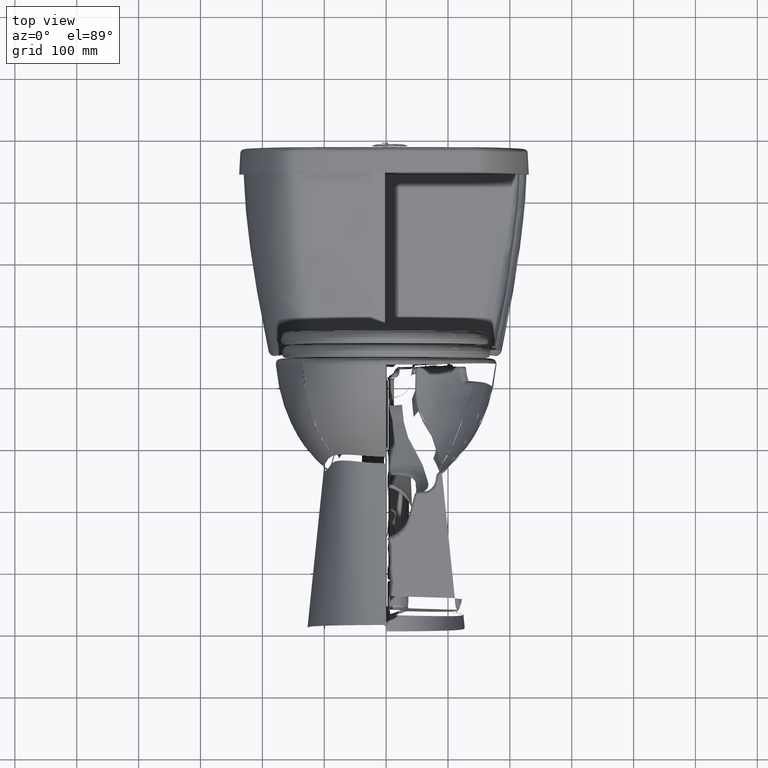
[diagram: clean part render]
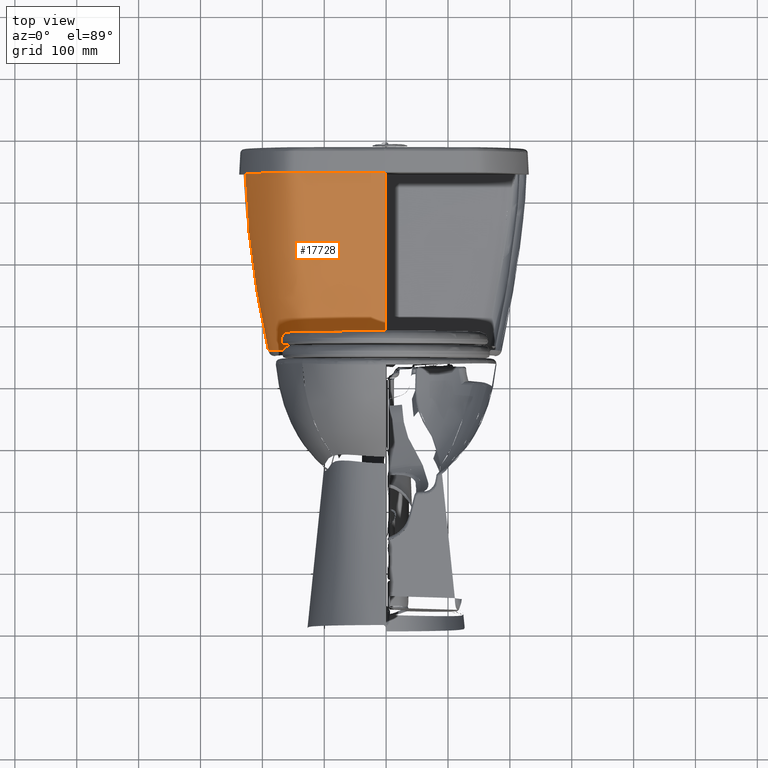
[diagram: same view with one face highlighted and labeled with its STEP entity id]
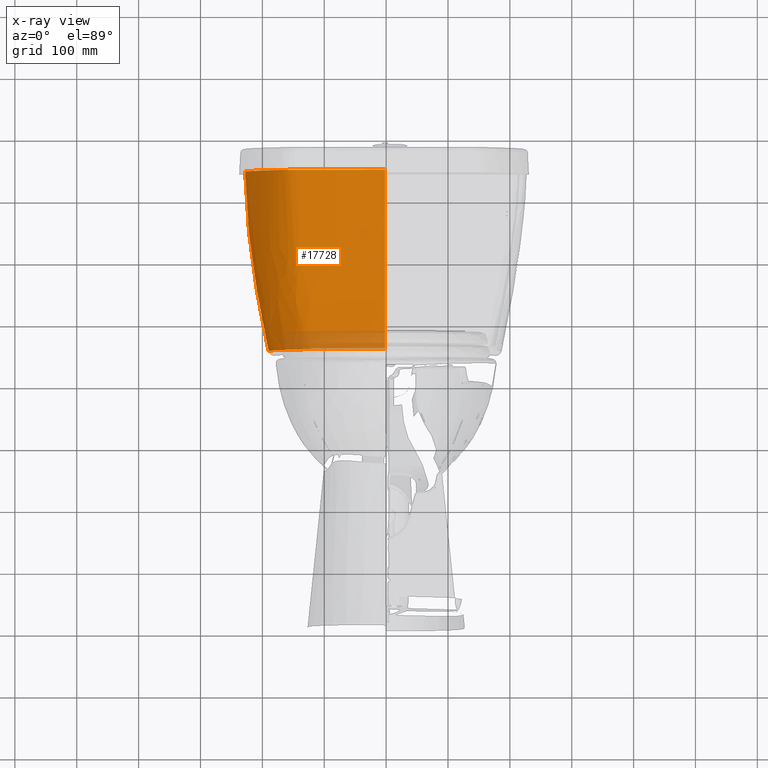
[diagram: x-ray of the same camera — body ghosted, the highlighted face saturated]
A machine part, top view. The second image highlights one B-rep face of the part: STEP entity #17728.
The next image is the same camera in x-ray: the body ghosted, the highlighted face saturated — about 8% of this face is hidden behind the body in this view.
In plain terms, the highlighted face is a freeform B-spline surface patch.
Its self-contained STEP definition (entity closure, byte-faithful):
#54 = CARTESIAN_POINT ( 'NONE',  ( -0.5759156156173215200, 8.645120971795753600, 18.14808200580433700 ) ) ;
#193 = ORIENTED_EDGE ( 'NONE', *, *, #99517, .T. ) ;
#425 = CARTESIAN_POINT ( 'NONE',  ( -4.843444304495649900, 9.036355176254870600, 18.12202411609814900 ) ) ;
#724 = CARTESIAN_POINT ( 'NONE',  ( -2.484427307581496000, 8.283950299369685400, 29.58607791455866100 ) ) ;
#875 = B_SPLINE_CURVE_WITH_KNOTS ( 'NONE', 3,
 ( #119340, #76656, #180079, #32629 ),
 .UNSPECIFIED., .F., .F.,
 ( 4, 4 ),
 ( 2.700093655429045700E-008, 1.000000000000000000 ),
 .UNSPECIFIED. ) ;
#978 = CARTESIAN_POINT ( 'NONE',  ( -0.06957529435913818700, 8.408995426294414000, 24.20142701333612600 ) ) ;
#1358 = CARTESIAN_POINT ( 'NONE',  ( -7.961040386578741100, 14.57544436936968600, 20.21667590555866300 ) ) ;
#1688 = EDGE_CURVE ( 'NONE', #75901, #140561, #108175, .T. ) ;
#1994 = CARTESIAN_POINT ( 'NONE',  ( -7.953771282578740600, 14.24922676836968600, 20.21746481355866000 ) ) ;
#2638 = CARTESIAN_POINT ( 'NONE',  ( -4.202420753578740800, 8.602909217369685300, 24.07287154855866600 ) ) ;
#2645 = EDGE_CURVE ( 'NONE', #91741, #110010, #82092, .T. ) ;
#2946 = CARTESIAN_POINT ( 'NONE',  ( -1.910012759629162300, 8.694009446846802500, 18.14820726276432700 ) ) ;
#3281 = CARTESIAN_POINT ( 'NONE',  ( -5.941964961578739800, 9.505108319369686100, 20.22394343755866300 ) ) ;
#3497 = ORIENTED_EDGE ( 'NONE', *, *, #138167, .T. ) ;
#3884 = CARTESIAN_POINT ( 'NONE',  ( -4.789893747882645800, 9.013719824153104900, 18.12511584792786600 ) ) ;
#3906 = CARTESIAN_POINT ( 'NONE',  ( -4.883689605578740400, 8.482439263369684600, 27.95242006855866300 ) ) ;
#4817 = B_SPLINE_CURVE_WITH_KNOTS ( 'NONE', 3,
 ( #60275, #148912, #31142, #104272 ),
 .UNSPECIFIED., .F., .F.,
 ( 4, 4 ),
 ( 0.0000000000000000000, 1.000000000000000000 ),
 .UNSPECIFIED. ) ;
#5168 = CARTESIAN_POINT ( 'NONE',  ( -4.398550120578741000, 8.919612159369684400, 18.01239655455866300 ) ) ;
#6168 = EDGE_CURVE ( 'NONE', #43469, #42097, #181508, .T. ) ;
#6179 = CARTESIAN_POINT ( 'NONE',  ( -7.482361455861553900, 14.53044846609858200, 18.07964991788846700 ) ) ;
#6355 = CARTESIAN_POINT ( 'NONE',  ( -5.274360142360504400, 9.353192366592084600, 18.10055319482524900 ) ) ;
#6710 = CARTESIAN_POINT ( 'NONE',  ( -6.767624438530874400, 9.354492718307378500, 29.51610994463990800 ) ) ;
#6722 = CARTESIAN_POINT ( 'NONE',  ( -4.279911011250380400, 8.374810559634978400, 29.50921690358447300 ) ) ;
#7443 = ORIENTED_EDGE ( 'NONE', *, *, #55020, .T. ) ;
#7987 = VERTEX_POINT ( 'NONE', #187131 ) ;
#8019 = B_SPLINE_CURVE_WITH_KNOTS ( 'NONE', 3,
 ( #121027, #31096, #32378, #135911 ),
 .UNSPECIFIED., .F., .F.,
 ( 4, 4 ),
 ( 0.0000000000000000000, 1.000000000000000000 ),
 .UNSPECIFIED. ) ;
#8160 = CARTESIAN_POINT ( 'NONE',  ( -3.075985671730977300, 8.767234846937196100, 18.14927285746048500 ) ) ;
#8534 = CARTESIAN_POINT ( 'NONE',  ( -0.06958910630861074600, 8.431692583550994200, 23.54027655544407700 ) ) ;
#8724 = CARTESIAN_POINT ( 'NONE',  ( -7.474128754038382300, 14.12249695793110500, 18.08161239953639000 ) ) ;
#9200 = CARTESIAN_POINT ( 'NONE',  ( -6.459285776620220100, 10.88132258206528000, 18.09260191678582800 ) ) ;
#9279 = ORIENTED_EDGE ( 'NONE', *, *, #156570, .T. ) ;
#9720 = EDGE_CURVE ( 'NONE', #140933, #69752, #118438, .T. ) ;
#10362 = VERTEX_POINT ( 'NONE', #110946 ) ;
#10743 = B_SPLINE_CURVE_WITH_KNOTS ( 'NONE', 3,
 ( #93323, #77810, #19521, #75899, #61004, #76535 ),
 .UNSPECIFIED., .F., .F.,
 ( 4, 2, 4 ),
 ( 0.0000000000000000000, 0.5000000000000000000, 1.000000000000000000 ),
 .UNSPECIFIED. ) ;
#10886 = B_SPLINE_CURVE_WITH_KNOTS ( 'NONE', 3,
 ( #185634, #127466, #143009, #143651, #187550, #186268 ),
 .UNSPECIFIED., .F., .F.,
 ( 4, 2, 4 ),
 ( 0.0000000000000000000, 0.5000000000000000000, 1.000000000000000000 ),
 .UNSPECIFIED. ) ;
#11003 = EDGE_CURVE ( 'NONE', #110010, #15673, #169446, .T. ) ;
#11337 = ORIENTED_EDGE ( 'NONE', *, *, #44198, .T. ) ;
#11759 = EDGE_CURVE ( 'NONE', #69752, #166173, #16447, .T. ) ;
#12516 = B_SPLINE_CURVE_WITH_KNOTS ( 'NONE', 3,
 ( #111550, #97340, #157465, #54603 ),
 .UNSPECIFIED., .F., .F.,
 ( 4, 4 ),
 ( 0.0000000000000000000, 1.000000000000000000 ),
 .UNSPECIFIED. ) ;
#13027 = ORIENTED_EDGE ( 'NONE', *, *, #161823, .T. ) ;
#13415 = CARTESIAN_POINT ( 'NONE',  ( -4.862374306323245900, 9.044828930298072200, 18.12088942272888300 ) ) ;
#13640 = CARTESIAN_POINT ( 'NONE',  ( -1.349757924535103000, 8.261261955880064200, 29.51170198151938700 ) ) ;
#13661 = CARTESIAN_POINT ( 'NONE',  ( -1.871979008769688800, 8.272324135655011900, 29.51135117646771300 ) ) ;
#13670 = CARTESIAN_POINT ( 'NONE',  ( -0.06687896272199492200, 8.639121858756297500, 18.14847525279141400 ) ) ;
#13696 = CARTESIAN_POINT ( 'NONE',  ( -4.185123306271648000, 8.881594745766204100, 18.14224217025906300 ) ) ;
#13697 = CARTESIAN_POINT ( 'NONE',  ( -7.354740879578740100, 10.19529421736968400, 29.58635484955866300 ) ) ;
#14003 = B_SPLINE_CURVE_WITH_KNOTS ( 'NONE', 3,
 ( #161384, #116127, #27491, #146537, #191714, #72782 ),
 .UNSPECIFIED., .F., .F.,
 ( 4, 2, 4 ),
 ( 0.0000000000000000000, 0.5000000000000000000, 1.000000000000000000 ),
 .UNSPECIFIED. ) ;
#14326 = CARTESIAN_POINT ( 'NONE',  ( -8.941374950578740800, 14.59875196836968500, 27.95269084155866000 ) ) ;
#14400 = CARTESIAN_POINT ( 'NONE',  ( -5.591708040825580800, 8.512835230966430800, 29.51016470317876300 ) ) ;
#14581 = ORIENTED_EDGE ( 'NONE', *, *, #137354, .T. ) ;
#14705 = CARTESIAN_POINT ( 'NONE',  ( -6.824759071996001400, 9.427432207082336600, 29.51639328671536300 ) ) ;
#14904 = CARTESIAN_POINT ( 'NONE',  ( -3.771526459276934000, 8.340502483219374600, 29.50896009080640800 ) ) ;
#15280 = CARTESIAN_POINT ( 'NONE',  ( -0.06687894166717083000, 8.248703220515347200, 29.51172890068780700 ) ) ;
#15286 = CARTESIAN_POINT ( 'NONE',  ( -4.899487010747526100, 9.063362250510440500, 18.11862005189147200 ) ) ;
#15293 = ORIENTED_EDGE ( 'NONE', *, *, #1688, .T. ) ;
#15516 = B_SPLINE_CURVE_WITH_KNOTS ( 'NONE', 3,
 ( #92133, #17704, #152280, #18344 ),
 .UNSPECIFIED., .F., .F.,
 ( 4, 4 ),
 ( 0.0000000000000000000, 1.000000000000000000 ),
 .UNSPECIFIED. ) ;
#15580 = CARTESIAN_POINT ( 'NONE',  ( -3.964515840578740800, 8.418418855369685300, 27.95178894755866800 ) ) ;
#15673 = VERTEX_POINT ( 'NONE', #14705 ) ;
#15791 = EDGE_CURVE ( 'NONE', #62003, #20037, #81539, .T. ) ;
#16227 = CARTESIAN_POINT ( 'NONE',  ( -5.508612629578740500, 9.113734766369686800, 20.22386222155866200 ) ) ;
#16447 = B_SPLINE_CURVE_WITH_KNOTS ( 'NONE', 3,
 ( #133940, #104169, #164926, #44624 ),
 .UNSPECIFIED., .F., .F.,
 ( 4, 4 ),
 ( 0.0000000000000000000, 1.000000000000000000 ),
 .UNSPECIFIED. ) ;
#16694 = CARTESIAN_POINT ( 'NONE',  ( -8.801917074316662600, 13.74801494391548600, 29.51307629096830400 ) ) ;
#16808 = ORIENTED_EDGE ( 'NONE', *, *, #109498, .T. ) ;
#16830 = EDGE_CURVE ( 'NONE', #60939, #64682, #180088, .T. ) ;
#16855 = CARTESIAN_POINT ( 'NONE',  ( -6.686868325484461200, 11.28157692393729600, 18.09345689286453400 ) ) ;
#16879 = CARTESIAN_POINT ( 'NONE',  ( -7.801106546578740400, 13.11978779536968700, 20.22047666255866400 ) ) ;
#16963 = CARTESIAN_POINT ( 'NONE',  ( -7.245524525503682000, 12.68298502122329900, 18.08886855818509800 ) ) ;
#17029 = ORIENTED_EDGE ( 'NONE', *, *, #19965, .T. ) ;
#17517 = CARTESIAN_POINT ( 'NONE',  ( -8.562769841578740300, 13.75393798136968800, 24.07330331055866400 ) ) ;
#17704 = CARTESIAN_POINT ( 'NONE',  ( -6.864002244024221400, 11.63290864703759600, 18.09356891522969900 ) ) ;
#17728 = ADVANCED_FACE ( 'NONE', ( #25951 ), #61690, .T. ) ;
#17977 = CARTESIAN_POINT ( 'NONE',  ( -8.835040380388999600, 13.89614937728836400, 29.51305981173584700 ) ) ;
#18154 = CARTESIAN_POINT ( 'NONE',  ( -7.631982921578740300, 12.46602721936968400, 20.22200228255866300 ) ) ;
#18344 = CARTESIAN_POINT ( 'NONE',  ( -6.686868325484461200, 11.28157692393729600, 18.09345689286453400 ) ) ;
#18834 = B_SPLINE_CURVE_WITH_KNOTS ( 'NONE', 3,
 ( #48391, #139586, #8160, #81329 ),
 .UNSPECIFIED., .F., .F.,
 ( 4, 4 ),
 ( 0.0000000000000000000, 1.000000000000000000 ),
 .UNSPECIFIED. ) ;
#19471 = ORIENTED_EDGE ( 'NONE', *, *, #130384, .T. ) ;
#19521 = CARTESIAN_POINT ( 'NONE',  ( -5.296188670955568300, 8.467987950217738200, 29.50991574958976900 ) ) ;
#19871 = EDGE_CURVE ( 'NONE', #52900, #63493, #19951, .T. ) ;
#19951 = B_SPLINE_CURVE_WITH_KNOTS ( 'NONE', 3,
 ( #24713, #187704, #159916, #113993 ),
 .UNSPECIFIED., .F., .F.,
 ( 4, 4 ),
 ( 0.0000000000000000000, 1.000000000000000000 ),
 .UNSPECIFIED. ) ;
#19965 = EDGE_CURVE ( 'NONE', #32003, #10362, #63793, .T. ) ;
#20037 = VERTEX_POINT ( 'NONE', #160557 ) ;
#20060 = CARTESIAN_POINT ( 'NONE',  ( -1.088936888581496100, 8.663872220369686500, 18.01236580555866200 ) ) ;
#20837 = B_SPLINE_CURVE_WITH_KNOTS ( 'NONE', 3,
 ( #33998, #92901, #2946, #78653 ),
 .UNSPECIFIED., .F., .F.,
 ( 4, 4 ),
 ( 0.0000000000000000000, 1.000000000000000000 ),
 .UNSPECIFIED. ) ;
#21195 = EDGE_CURVE ( 'NONE', #10362, #46829, #875, .T. ) ;
#21599 = CARTESIAN_POINT ( 'NONE',  ( -6.703992617314807700, 9.275782709386229300, 29.51573660899459400 ) ) ;
#21965 = B_SPLINE_CURVE_WITH_KNOTS ( 'NONE', 3,
 ( #98956, #158435, #40701, #70490, #173291, #87281 ),
 .UNSPECIFIED., .F., .F.,
 ( 4, 2, 4 ),
 ( 0.0000000000000000000, 0.5000000000000000000, 1.000000000000000000 ),
 .UNSPECIFIED. ) ;
#22290 = CARTESIAN_POINT ( 'NONE',  ( -8.299225146130329000, 12.17532386870163200, 29.51338897246973000 ) ) ;
#23167 = B_SPLINE_CURVE_WITH_KNOTS ( 'NONE', 3,
 ( #36161, #168764, #6355, #124813 ),
 .UNSPECIFIED., .F., .F.,
 ( 4, 4 ),
 ( 0.0000000000000000000, 1.000000000000000000 ),
 .UNSPECIFIED. ) ;
#23372 = B_SPLINE_CURVE_WITH_KNOTS ( 'NONE', 3,
 ( #136142, #61746, #120612, #31974 ),
 .UNSPECIFIED., .F., .F.,
 ( 4, 4 ),
 ( 0.0000000000000000000, 1.000000000000000000 ),
 .UNSPECIFIED. ) ;
#23425 = VERTEX_POINT ( 'NONE', #98629 ) ;
#23628 = CARTESIAN_POINT ( 'NONE',  ( -7.464801493988217900, 13.98897612093228700, 18.08220826202361700 ) ) ;
#24292 = CARTESIAN_POINT ( 'NONE',  ( -5.055733736940016600, 9.162039709685123200, 18.10954401536872300 ) ) ;
#24713 = CARTESIAN_POINT ( 'NONE',  ( -5.223544044011286600, 9.304916576859614700, 18.10239243819775700 ) ) ;
#24889 = B_SPLINE_CURVE_WITH_KNOTS ( 'NONE', 3,
 ( #116280, #39943, #144135, #102051, #27640, #158947 ),
 .UNSPECIFIED., .F., .F.,
 ( 4, 2, 4 ),
 ( 0.0000000000000000000, 0.5000000000000000000, 1.000000000000000000 ),
 .UNSPECIFIED. ) ;
#25484 = B_SPLINE_CURVE_WITH_KNOTS ( 'NONE', 3,
 ( #134512, #45824, #16694, #17977 ),
 .UNSPECIFIED., .F., .F.,
 ( 4, 4 ),
 ( 0.0000000000000000000, 1.000000000000000000 ),
 .UNSPECIFIED. ) ;
#25610 = CARTESIAN_POINT ( 'NONE',  ( -0.06713577941557386000, 8.266831558500092200, 28.82473935726169900 ) ) ;
#25951 = FACE_OUTER_BOUND ( 'NONE', #112239, .T. ) ;
#26604 = VERTEX_POINT ( 'NONE', #122401 ) ;
#27327 = CARTESIAN_POINT ( 'NONE',  ( -6.026635929333781200, 8.664478427133619900, 29.51229056747580500 ) ) ;
#27329 = CARTESIAN_POINT ( 'NONE',  ( -6.791469629578741300, 9.372721199369685500, 27.95449382355866400 ) ) ;
#27412 = CARTESIAN_POINT ( 'NONE',  ( -5.737494443881623800, 8.548739771452485300, 29.51063363665632300 ) ) ;
#27423 = CARTESIAN_POINT ( 'NONE',  ( -6.171045592999393900, 8.756071661935138200, 29.51295800513034400 ) ) ;
#27429 = B_SPLINE_CURVE_WITH_KNOTS ( 'NONE', 3,
 ( #187151, #53953, #6722, #110257, #140693, #112175 ),
 .UNSPECIFIED., .F., .F.,
 ( 4, 2, 4 ),
 ( 0.0000000000000000000, 0.5000000000000000000, 1.000000000000000000 ),
 .UNSPECIFIED. ) ;
#27491 = CARTESIAN_POINT ( 'NONE',  ( -1.529798068705945600, 8.676718773866010500, 18.14764415410098800 ) ) ;
#27540 = CARTESIAN_POINT ( 'NONE',  ( -2.928591381195276600, 8.756489519258273900, 18.14943787137755700 ) ) ;
#27640 = CARTESIAN_POINT ( 'NONE',  ( -5.987525958743279200, 10.18618100188932400, 18.09161236388856500 ) ) ;
#27946 = CARTESIAN_POINT ( 'NONE',  ( -7.392017609571041700, 13.36029025162438100, 18.08506216090036000 ) ) ;
#27975 = CARTESIAN_POINT ( 'NONE',  ( -8.606683746578740500, 13.12625184736968400, 27.95551233855865900 ) ) ;
#27985 = CARTESIAN_POINT ( 'NONE',  ( -7.189371098487355600, 9.940537230721801600, 29.51720479134369800 ) ) ;
#28113 = CARTESIAN_POINT ( 'NONE',  ( -7.429890904259779400, 13.62573319653740700, 18.08382414770434100 ) ) ;
#28568 = CARTESIAN_POINT ( 'NONE',  ( -3.148811801155903200, 8.311085266289771000, 29.50963670896103300 ) ) ;
#29014 = ORIENTED_EDGE ( 'NONE', *, *, #103184, .T. ) ;
#29152 = B_SPLINE_CURVE_WITH_KNOTS ( 'NONE', 3,
 ( #28113, #102508, #131626, #85070 ),
 .UNSPECIFIED., .F., .F.,
 ( 4, 4 ),
 ( 0.0000000000000000000, 1.000000000000000000 ),
 .UNSPECIFIED. ) ;
#29231 = CARTESIAN_POINT ( 'NONE',  ( -5.851533434578740000, 8.579414152369684700, 29.58621149255866500 ) ) ;
#29581 = B_SPLINE_CURVE_WITH_KNOTS ( 'NONE', 3,
 ( #177451, #88877, #60382, #32542 ),
 .UNSPECIFIED., .F., .F.,
 ( 4, 4 ),
 ( 0.0000000000000000000, 1.000000000000000000 ),
 .UNSPECIFIED. ) ;
#29710 = CARTESIAN_POINT ( 'NONE',  ( -7.392017609571041700, 13.36029025162438100, 18.08506216090036000 ) ) ;
#29870 = CARTESIAN_POINT ( 'NONE',  ( -3.960117287578740300, 8.347894363369686500, 29.58612242355866300 ) ) ;
#30058 = CARTESIAN_POINT ( 'NONE',  ( -6.943855121904792100, 9.580882543105628800, 29.51694103702190100 ) ) ;
#30300 = VERTEX_POINT ( 'NONE', #81128 ) ;
#30346 = CARTESIAN_POINT ( 'NONE',  ( -7.314196375219895100, 12.95899655256626900, 18.08722802056546900 ) ) ;
#30502 = CARTESIAN_POINT ( 'NONE',  ( -6.234930196578740300, 9.830835492369685000, 20.22398390055866500 ) ) ;
#30561 = CARTESIAN_POINT ( 'NONE',  ( -6.633352075267104900, 9.191638061342262100, 29.51527329305868000 ) ) ;
#30981 = CARTESIAN_POINT ( 'NONE',  ( -2.424136804976375200, 8.722706227852031100, 18.14918593247441700 ) ) ;
#31096 = CARTESIAN_POINT ( 'NONE',  ( -0.06762824288161370400, 8.591683194408361100, 19.28482992333070800 ) ) ;
#31136 = CARTESIAN_POINT ( 'NONE',  ( -3.298767321581496300, 8.377809035369685000, 27.95141532055866300 ) ) ;
#31142 = CARTESIAN_POINT ( 'NONE',  ( -3.442174450363798800, 8.797485151389038200, 18.14767942714117800 ) ) ;
#31707 = EDGE_CURVE ( 'NONE', #67588, #110510, #63651, .T. ) ;
#31783 = CARTESIAN_POINT ( 'NONE',  ( -4.491424963578740700, 8.452852124369684400, 27.95213591055866000 ) ) ;
#31974 = CARTESIAN_POINT ( 'NONE',  ( -4.532316520570808500, 8.939644056616785400, 18.13652129419253400 ) ) ;
#31987 = ORIENTED_EDGE ( 'NONE', *, *, #96120, .T. ) ;
#32003 = VERTEX_POINT ( 'NONE', #77948 ) ;
#32378 = CARTESIAN_POINT ( 'NONE',  ( -0.06825702994223109600, 8.554863248165649000, 20.20672180327644800 ) ) ;
#32420 = CARTESIAN_POINT ( 'NONE',  ( 0.01283515141818897600, 8.289782503369686100, 27.95061515355866500 ) ) ;
#32470 = CARTESIAN_POINT ( 'NONE',  ( -4.918156015806580700, 9.073035024279066700, 18.11746005950843500 ) ) ;
#32542 = CARTESIAN_POINT ( 'NONE',  ( -7.736700474053893800, 10.90412051503249900, 29.51558084639765800 ) ) ;
#32629 = CARTESIAN_POINT ( 'NONE',  ( -0.06687896537549675700, 8.629987242170070500, 18.36668607419317900 ) ) ;
#32707 = B_SPLINE_CURVE_WITH_KNOTS ( 'NONE', 3,
 ( #97985, #69506, #14400, #57165, #146457, #27412 ),
 .UNSPECIFIED., .F., .F.,
 ( 4, 2, 4 ),
 ( 0.0000000000000000000, 0.5000000000000000000, 1.000000000000000000 ),
 .UNSPECIFIED. ) ;
#32802 = CARTESIAN_POINT ( 'NONE',  ( -2.564162982359838400, 8.290293666661485300, 29.51051158176378300 ) ) ;
#33062 = CARTESIAN_POINT ( 'NONE',  ( 0.006455968418188975900, 8.405620319369685200, 24.07314927655866300 ) ) ;
#33658 = CARTESIAN_POINT ( 'NONE',  ( -4.716700813625972300, 8.409601510999728200, 29.50955778339880800 ) ) ;
#33785 = ORIENTED_EDGE ( 'NONE', *, *, #90742, .T. ) ;
#33998 = CARTESIAN_POINT ( 'NONE',  ( -2.128973087010628300, 8.705559562459066900, 18.14861234814961200 ) ) ;
#34978 = EDGE_CURVE ( 'NONE', #80819, #117129, #65840, .T. ) ;
#35245 = EDGE_CURVE ( 'NONE', #83023, #108493, #21965, .T. ) ;
#35307 = CARTESIAN_POINT ( 'NONE',  ( -8.128016930795951100, 11.75922257144777400, 29.51383433778567400 ) ) ;
#35464 = B_SPLINE_CURVE_WITH_KNOTS ( 'NONE', 3,
 ( #29710, #133240, #161706, #30346 ),
 .UNSPECIFIED., .F., .F.,
 ( 4, 4 ),
 ( 0.0000000000000000000, 1.000000000000000000 ),
 .UNSPECIFIED. ) ;
#35603 = CARTESIAN_POINT ( 'NONE',  ( -3.807926719581495900, 8.839728232369685300, 18.01238822655866300 ) ) ;
#35781 = CARTESIAN_POINT ( 'NONE',  ( -7.887204188091015300, 11.21421315749575400, 29.51485813735561000 ) ) ;
#35793 = CARTESIAN_POINT ( 'NONE',  ( -8.969553550552150900, 14.62322869866720700, 29.51326678165068200 ) ) ;
#36161 = CARTESIAN_POINT ( 'NONE',  ( -5.368479778144433100, 9.451906497066128000, 18.09794574598928200 ) ) ;
#36703 = CARTESIAN_POINT ( 'NONE',  ( -5.785698296115279000, 8.563030956695918400, 29.51086110109954000 ) ) ;
#36839 = EDGE_CURVE ( 'NONE', #49084, #140377, #43250, .T. ) ;
#37109 = CARTESIAN_POINT ( 'NONE',  ( -5.368479778144433100, 9.451906497066128000, 18.09794574598928200 ) ) ;
#37509 = B_SPLINE_CURVE_WITH_KNOTS ( 'NONE', 3,
 ( #177917, #13640, #117168, #57669 ),
 .UNSPECIFIED., .F., .F.,
 ( 4, 4 ),
 ( 0.0000000000000000000, 1.000000000000000000 ),
 .UNSPECIFIED. ) ;
#38485 = CARTESIAN_POINT ( 'NONE',  ( -7.464801493988217900, 13.98897612093228700, 18.08220826202361700 ) ) ;
#38872 = CARTESIAN_POINT ( 'NONE',  ( -4.369787881161405700, 8.909276420144541600, 18.14007221432677100 ) ) ;
#39099 = CARTESIAN_POINT ( 'NONE',  ( -5.188325168570812300, 8.455712613476452000, 29.50985505875514600 ) ) ;
#39183 = CARTESIAN_POINT ( 'NONE',  ( -5.020697945948756800, 9.135990605698285800, 18.11127372198136600 ) ) ;
#39446 = CARTESIAN_POINT ( 'NONE',  ( -7.245524525503682000, 12.68298502122329900, 18.08886855818509800 ) ) ;
#39884 = B_SPLINE_CURVE_WITH_KNOTS ( 'NONE', 3,
 ( #28568, #59572, #14904, #176022 ),
 .UNSPECIFIED., .F., .F.,
 ( 4, 4 ),
 ( 0.0000000000000000000, 1.000000000000000000 ),
 .UNSPECIFIED. ) ;
#39943 = CARTESIAN_POINT ( 'NONE',  ( -6.200799387758009700, 10.48129334941366900, 18.09167612362760400 ) ) ;
#40031 = CARTESIAN_POINT ( 'NONE',  ( -7.270418464351959800, 12.77443966538951200, 18.08832330394271500 ) ) ;
#40267 = ORIENTED_EDGE ( 'NONE', *, *, #66931, .T. ) ;
#40406 = EDGE_CURVE ( 'NONE', #136599, #83023, #25484, .T. ) ;
#40584 = VERTEX_POINT ( 'NONE', #86887 ) ;
#40701 = CARTESIAN_POINT ( 'NONE',  ( -8.892585324073270000, 14.16767844037057100, 29.51307450644430100 ) ) ;
#41179 = B_SPLINE_CURVE_WITH_KNOTS ( 'NONE', 3,
 ( #30981, #80716, #64583, #80089 ),
 .UNSPECIFIED., .F., .F.,
 ( 4, 4 ),
 ( 0.0000000000000000000, 1.000000000000000000 ),
 .UNSPECIFIED. ) ;
#41225 = CARTESIAN_POINT ( 'NONE',  ( -7.189371098487355600, 9.940537230721801600, 29.51720479134369800 ) ) ;
#41411 = B_SPLINE_CURVE_WITH_KNOTS ( 'NONE', 3,
 ( #73520, #47625, #184649, #35307, #110950, #22290, #155604, #138208 ),
 .UNSPECIFIED., .F., .F.,
 ( 4, 2, 2, 4 ),
 ( 0.0000000000000000000, 0.2500000000000011700, 0.5000000000000023300, 1.000000000000000000 ),
 .UNSPECIFIED. ) ;
#41791 = CARTESIAN_POINT ( 'NONE',  ( -8.515160149212450200, 12.76591479566890500, 29.51320015962904400 ) ) ;
#42097 = VERTEX_POINT ( 'NONE', #191409 ) ;
#42202 = CARTESIAN_POINT ( 'NONE',  ( -6.542053059578740300, 9.101372878369685900, 27.95409101255866300 ) ) ;
#42291 = CARTESIAN_POINT ( 'NONE',  ( -5.940308389912977400, 10.12471942446330400, 18.09175157450324900 ) ) ;
#42842 = CARTESIAN_POINT ( 'NONE',  ( -7.859936943578740700, 11.14871608536968500, 29.58640521855866400 ) ) ;
#43250 = B_SPLINE_CURVE_WITH_KNOTS ( 'NONE', 3,
 ( #170068, #126133, #81472, #96367 ),
 .UNSPECIFIED., .F., .F.,
 ( 4, 4 ),
 ( 0.0000000000000000000, 1.000000000000000000 ),
 .UNSPECIFIED. ) ;
#43437 = EDGE_CURVE ( 'NONE', #54144, #60939, #95391, .T. ) ;
#43469 = VERTEX_POINT ( 'NONE', #16963 ) ;
#43899 = ORIENTED_EDGE ( 'NONE', *, *, #106562, .T. ) ;
#44098 = CARTESIAN_POINT ( 'NONE',  ( -8.788643253578740700, 13.77357758536968600, 27.95441291755866300 ) ) ;
#44198 = EDGE_CURVE ( 'NONE', #161383, #57173, #53752, .T. ) ;
#44624 = CARTESIAN_POINT ( 'NONE',  ( -4.185123306271648000, 8.881594745766204100, 18.14224217025906300 ) ) ;
#44717 = CARTESIAN_POINT ( 'NONE',  ( -7.071035238578741800, 9.732002577369685900, 27.95500022555866300 ) ) ;
#44769 = ORIENTED_EDGE ( 'NONE', *, *, #156507, .T. ) ;
#45334 = CARTESIAN_POINT ( 'NONE',  ( -4.815590292692595800, 9.023890339128692900, 18.12366350769669400 ) ) ;
#45349 = B_SPLINE_CURVE_WITH_KNOTS ( 'NONE', 3,
 ( #147740, #89497, #134145, #161331, #177438 ),
 .UNSPECIFIED., .F., .F.,
 ( 4, 1, 4 ),
 ( 0.01466018292442166000, 0.4161931364479999900, 0.9737732050194725100 ),
 .UNSPECIFIED. ) ;
#45357 = CARTESIAN_POINT ( 'NONE',  ( -4.788053805578740300, 8.840615396369685200, 20.22375666955866100 ) ) ;
#45824 = CARTESIAN_POINT ( 'NONE',  ( -8.765376053953254100, 13.60060002251360500, 29.51309140609866700 ) ) ;
#46000 = CARTESIAN_POINT ( 'NONE',  ( -7.445252388578740700, 13.77450303536968700, 18.01188086055866200 ) ) ;
#46054 = VERTEX_POINT ( 'NONE', #155974 ) ;
#46610 = CARTESIAN_POINT ( 'NONE',  ( -4.722689823425084500, 8.989792104887078100, 18.12872463759050500 ) ) ;
#46639 = CARTESIAN_POINT ( 'NONE',  ( -3.702510023581496500, 8.575823991369686500, 24.07302214455866000 ) ) ;
#46690 = CARTESIAN_POINT ( 'NONE',  ( -4.899487010747526100, 9.063362250510440500, 18.11862005189147200 ) ) ;
#46829 = VERTEX_POINT ( 'NONE', #106469 ) ;
#47288 = CARTESIAN_POINT ( 'NONE',  ( -4.154597129578740500, 8.763981695369684700, 20.22368276355866400 ) ) ;
#47625 = CARTESIAN_POINT ( 'NONE',  ( -8.000387501430196800, 11.46477373124454900, 29.51430093834489200 ) ) ;
#47922 = CARTESIAN_POINT ( 'NONE',  ( -8.250826220578741000, 12.46685090536968600, 24.07084154555865800 ) ) ;
#48303 = ORIENTED_EDGE ( 'NONE', *, *, #56415, .T. ) ;
#48391 = CARTESIAN_POINT ( 'NONE',  ( -3.339222559362214200, 8.788736259030200100, 18.14821108978464200 ) ) ;
#48684 = ORIENTED_EDGE ( 'NONE', *, *, #132174, .T. ) ;
#49084 = VERTEX_POINT ( 'NONE', #180940 ) ;
#49491 = CARTESIAN_POINT ( 'NONE',  ( -6.824759071996001400, 9.427432207082336600, 29.51639328671536300 ) ) ;
#50335 = ORIENTED_EDGE ( 'NONE', *, *, #9720, .T. ) ;
#50479 = CARTESIAN_POINT ( 'NONE',  ( -5.471348025578740800, 9.582640402369685600, 18.01241792655866200 ) ) ;
#51120 = CARTESIAN_POINT ( 'NONE',  ( -2.559554091581496000, 8.735203292369686100, 18.01237446055866400 ) ) ;
#51777 = ORIENTED_EDGE ( 'NONE', *, *, #170289, .T. ) ;
#51924 = ORIENTED_EDGE ( 'NONE', *, *, #31707, .T. ) ;
#51949 = CARTESIAN_POINT ( 'NONE',  ( -0.06958131538433295900, 8.418896210879678300, 23.91302489370827500 ) ) ;
#52023 = CARTESIAN_POINT ( 'NONE',  ( -0.06687894166717083000, 8.248703220515347200, 29.51172890068780700 ) ) ;
#52759 = CARTESIAN_POINT ( 'NONE',  ( -7.478614487246360000, 14.24040438427722000, 18.08106910248029200 ) ) ;
#52873 = ORIENTED_EDGE ( 'NONE', *, *, #158225, .T. ) ;
#52900 = VERTEX_POINT ( 'NONE', #80084 ) ;
#53752 = B_SPLINE_CURVE_WITH_KNOTS ( 'NONE', 3,
 ( #68075, #184487, #35781, #95304 ),
 .UNSPECIFIED., .F., .F.,
 ( 4, 4 ),
 ( 0.0000000000000000000, 1.000000000000000000 ),
 .UNSPECIFIED. ) ;
#53953 = CARTESIAN_POINT ( 'NONE',  ( -4.170178608125584500, 8.366949789213441200, 29.50913216624571700 ) ) ;
#54144 = VERTEX_POINT ( 'NONE', #156456 ) ;
#54603 = CARTESIAN_POINT ( 'NONE',  ( -6.455210952933450500, 8.997153099194900200, 29.51415124906653300 ) ) ;
#55020 = EDGE_CURVE ( 'NONE', #143271, #110627, #147093, .T. ) ;
#55198 = B_SPLINE_CURVE_WITH_KNOTS ( 'NONE', 3,
 ( #52023, #185847, #112798, #111515 ),
 .UNSPECIFIED., .F., .F.,
 ( 4, 4 ),
 ( 2.274760942528849000E-012, 1.000000000000000000 ),
 .UNSPECIFIED. ) ;
#55813 = ORIENTED_EDGE ( 'NONE', *, *, #11759, .T. ) ;
#56205 = CARTESIAN_POINT ( 'NONE',  ( -7.245524525503682000, 12.68298502122329900, 18.08886855818509800 ) ) ;
#56415 = EDGE_CURVE ( 'NONE', #157241, #118254, #183795, .T. ) ;
#56445 = CARTESIAN_POINT ( 'NONE',  ( -5.946624609090181800, 8.627064267829137400, 29.51179483554098600 ) ) ;
#56470 = VERTEX_POINT ( 'NONE', #63828 ) ;
#56598 = CARTESIAN_POINT ( 'NONE',  ( -4.532316520570808500, 8.939644056616785400, 18.13652129419253400 ) ) ;
#57030 = CARTESIAN_POINT ( 'NONE',  ( -2.564162982359838400, 8.290293666661485300, 29.51051158176378300 ) ) ;
#57086 = CARTESIAN_POINT ( 'NONE',  ( -6.186187918578740500, 8.794904535369685300, 27.95360464655866300 ) ) ;
#57165 = CARTESIAN_POINT ( 'NONE',  ( -5.667295101633824200, 8.529657828932625900, 29.51036334024383500 ) ) ;
#57173 = VERTEX_POINT ( 'NONE', #166445 ) ;
#57669 = CARTESIAN_POINT ( 'NONE',  ( -1.871979008769688800, 8.272324135655011900, 29.51135117646771300 ) ) ;
#57697 = CARTESIAN_POINT ( 'NONE',  ( -0.3625800606828610300, 8.640568283234911100, 18.14832692171761500 ) ) ;
#57725 = CARTESIAN_POINT ( 'NONE',  ( -7.846421186578741200, 11.14679861536968500, 27.95638476755866400 ) ) ;
#58362 = CARTESIAN_POINT ( 'NONE',  ( -6.028151399578740100, 8.661811739369685600, 29.58622260755866400 ) ) ;
#59065 = CARTESIAN_POINT ( 'NONE',  ( -3.998049691773105900, 8.856827572825398700, 18.14349803035854300 ) ) ;
#59572 = CARTESIAN_POINT ( 'NONE',  ( -3.467536875959324600, 8.324306275948988100, 29.50915615051735900 ) ) ;
#59623 = CARTESIAN_POINT ( 'NONE',  ( -6.784615423578740600, 9.369511270369685000, 29.58628883255866500 ) ) ;
#59773 = CARTESIAN_POINT ( 'NONE',  ( -5.368479778144433100, 9.451906497066128000, 18.09794574598928200 ) ) ;
#59811 = CARTESIAN_POINT ( 'NONE',  ( -7.189371098487355600, 9.940537230721801600, 29.51720479134369800 ) ) ;
#59858 = B_SPLINE_CURVE_WITH_KNOTS ( 'NONE', 3,
 ( #166974, #77772, #32470, #46690 ),
 .UNSPECIFIED., .F., .F.,
 ( 4, 4 ),
 ( 0.0000000000000000000, 1.000000000000000000 ),
 .UNSPECIFIED. ) ;
#60239 = CARTESIAN_POINT ( 'NONE',  ( -6.632794033277840600, 11.18060996371660900, 18.09330129538629700 ) ) ;
#60266 = CARTESIAN_POINT ( 'NONE',  ( -2.115940186581496200, 8.613322650369685400, 20.22351706155866300 ) ) ;
#60275 = CARTESIAN_POINT ( 'NONE',  ( -3.678762342912619100, 8.820339041945475200, 18.14599635198385400 ) ) ;
#60382 = CARTESIAN_POINT ( 'NONE',  ( -7.672129879031670500, 10.77471029779872000, 29.51588635289055800 ) ) ;
#60459 = CARTESIAN_POINT ( 'NONE',  ( -7.736700474053893800, 10.90412051503249900, 29.51558084639765800 ) ) ;
#60612 = CARTESIAN_POINT ( 'NONE',  ( -4.881064066377542000, 9.053818299909410800, 18.11975473469056300 ) ) ;
#60913 = CARTESIAN_POINT ( 'NONE',  ( -6.526401453578740700, 9.407226121369685500, 24.07148482955866000 ) ) ;
#60939 = VERTEX_POINT ( 'NONE', #83281 ) ;
#61004 = CARTESIAN_POINT ( 'NONE',  ( -5.457529380829660300, 8.489183603989848900, 29.51000716386962000 ) ) ;
#61552 = CARTESIAN_POINT ( 'NONE',  ( -6.247856271578739600, 9.161957705369685500, 24.07175429355866200 ) ) ;
#61690 = B_SPLINE_SURFACE_WITH_KNOTS ( 'NONE', 3, 3, ( 
 ( #87502, #116605, #88132, #73894, #102375, #131489, #42842, #161851, #13697, #146374, #59623, #132121, #74523, #132758, #58362, #29231, #89394, #73260, #176703, #177973, #29870, #177331, #724, #115968, #130854, #102996 ),
 ( #14326, #133393, #44098, #27975, #175433, #147631, #57725, #162491, #88757, #44717, #27329, #42202, #145741, #57086, #160588, #71997, #190303, #101743, #3906, #31783, #15580, #31136, #136591, #151457, #77721, #32420 ),
 ( #91942, #135308, #17517, #76446, #47922, #91307, #62822, #90024, #121068, #135951, #60913, #61552, #62194, #178605, #166293, #181158, #105525, #92591, #179877, #2638, #46639, #149539, #90670, #75165, #121709, #33062 ),
 ( #1358, #1994, #164388, #16879, #18154, #75803, #165661, #104895, #119142, #30502, #3281, #179244, #16227, #119771, #134034, #150180, #45357, #106160, #47288, #77088, #148905, #120421, #60266, #165027, #163748, #150827 ),
 ( #134688, #180517, #46000, #106808, #94501, #66013, #152725, #64095, #139764, #167562, #50479, #108729, #153995, #122995, #168832, #79612, #5168, #65380, #35603, #93866, #154633, #51120, #78988, #20060, #152093, #123636 ) ),
 .UNSPECIFIED., .F., .F., .F.,
 ( 4, 1, 4 ),
 ( 4, 1, 1, 1, 1, 1, 1, 1, 1, 1, 1, 1, 1, 1, 1, 1, 1, 1, 1, 1, 1, 1, 1, 4 ),
 ( 0.008595575247900999500, 0.4161931364479999900, 0.9795297317079999500 ),
 ( 0.6004025990460000200, 0.6228102780230000400, 0.6340141175110000100, 0.6452179569989999800, 0.6691447466169999600, 0.6811081414259999600, 0.6930715362339999700, 0.7050349310429999700, 0.7169983258519999600, 0.7289617206609999600, 0.7349434180649999600, 0.7409251154689999700, 0.7449719014960000100, 0.7490186875219999600, 0.7530654735480000200, 0.7571122595749999500, 0.7652058316269999500, 0.7732994036800000500, 0.7813929757319999500, 0.7894865477850000500, 0.8056736918900000400, 0.8218608359950000400, 0.8380479801000000300, 0.8720790099749999900 ),
 .UNSPECIFIED. ) ;
#61746 = CARTESIAN_POINT ( 'NONE',  ( -4.642816174350144800, 8.964714370324141900, 18.13266101156880000 ) ) ;
#61906 = VERTEX_POINT ( 'NONE', #67911 ) ;
#62003 = VERTEX_POINT ( 'NONE', #84052 ) ;
#62006 = CARTESIAN_POINT ( 'NONE',  ( -7.535136236933572800, 10.51908463096467900, 29.51649273306102100 ) ) ;
#62194 = CARTESIAN_POINT ( 'NONE',  ( -6.051481685578740300, 9.004971171369685800, 24.07192628055866000 ) ) ;
#62822 = CARTESIAN_POINT ( 'NONE',  ( -7.693068100578740200, 11.14953663436968500, 24.07031344055866000 ) ) ;
#63265 = ORIENTED_EDGE ( 'NONE', *, *, #35245, .T. ) ;
#63493 = VERTEX_POINT ( 'NONE', #64501 ) ;
#63651 = B_SPLINE_CURVE_WITH_KNOTS ( 'NONE', 3,
 ( #113990, #82328, #99136, #127611, #8534, #51949 ),
 .UNSPECIFIED., .F., .F.,
 ( 4, 2, 4 ),
 ( 0.0000000000000000000, 0.5000000000000000000, 1.000000000000000000 ),
 .UNSPECIFIED. ) ;
#63793 = B_SPLINE_CURVE_WITH_KNOTS ( 'NONE', 3,
 ( #54, #57697, #87467, #13670 ),
 .UNSPECIFIED., .F., .F.,
 ( 4, 4 ),
 ( 0.0000000000000000000, 1.000000000002624600 ),
 .UNSPECIFIED. ) ;
#63828 = CARTESIAN_POINT ( 'NONE',  ( -1.049872680853539200, 8.256746345972972600, 29.51174170868268100 ) ) ;
#64076 = ORIENTED_EDGE ( 'NONE', *, *, #136486, .T. ) ;
#64095 = CARTESIAN_POINT ( 'NONE',  ( -6.356875159578740100, 10.73479396536968400, 18.01240987155866300 ) ) ;
#64479 = CARTESIAN_POINT ( 'NONE',  ( -2.759278392931270300, 8.296223443373051500, 29.51021903062523700 ) ) ;
#64501 = CARTESIAN_POINT ( 'NONE',  ( -5.055733736940016600, 9.162039709685123200, 18.10954401536872300 ) ) ;
#64569 = CARTESIAN_POINT ( 'NONE',  ( -5.737494443881623800, 8.548739771452485300, 29.51063363665632300 ) ) ;
#64583 = CARTESIAN_POINT ( 'NONE',  ( -2.227361045036262400, 8.710943976473855000, 18.14880346239453200 ) ) ;
#64682 = VERTEX_POINT ( 'NONE', #59773 ) ;
#64736 = VERTEX_POINT ( 'NONE', #134196 ) ;
#65380 = CARTESIAN_POINT ( 'NONE',  ( -4.126439784578740200, 8.880173976369686500, 18.01239258955866200 ) ) ;
#65399 = VERTEX_POINT ( 'NONE', #188148 ) ;
#65840 = B_SPLINE_CURVE_WITH_KNOTS ( 'NONE', 3,
 ( #27985, #99823, #190939, #101106 ),
 .UNSPECIFIED., .F., .F.,
 ( 4, 4 ),
 ( 0.0000000000000000000, 1.000000000000000000 ),
 .UNSPECIFIED. ) ;
#66013 = CARTESIAN_POINT ( 'NONE',  ( -6.943414326578741600, 11.81559488336968400, 18.01232244455866300 ) ) ;
#66296 = CARTESIAN_POINT ( 'NONE',  ( -6.797216632572228100, 9.391944912689114100, 29.51626661544009500 ) ) ;
#66687 = EDGE_CURVE ( 'NONE', #139479, #84094, #29152, .T. ) ;
#66931 = EDGE_CURVE ( 'NONE', #118254, #109322, #39884, .T. ) ;
#67588 = VERTEX_POINT ( 'NONE', #171881 ) ;
#67759 = B_SPLINE_CURVE_WITH_KNOTS ( 'NONE', 3,
 ( #27423, #159392, #160036, #86961 ),
 .UNSPECIFIED., .F., .F.,
 ( 4, 4 ),
 ( 0.0000000000000000000, 1.000000000000000000 ),
 .UNSPECIFIED. ) ;
#67911 = CARTESIAN_POINT ( 'NONE',  ( -6.171045592999393900, 8.756071661935138200, 29.51295800513034400 ) ) ;
#68075 = CARTESIAN_POINT ( 'NONE',  ( -7.736700474053893800, 10.90412051503249900, 29.51558084639765800 ) ) ;
#69506 = CARTESIAN_POINT ( 'NONE',  ( -5.552123308604129700, 8.505188817531932300, 29.51008927490862600 ) ) ;
#69752 = VERTEX_POINT ( 'NONE', #112252 ) ;
#70021 = CARTESIAN_POINT ( 'NONE',  ( -2.564162982359838400, 8.290293666661485300, 29.51051158176378300 ) ) ;
#70230 = CARTESIAN_POINT ( 'NONE',  ( -7.314196375219895100, 12.95899655256626900, 18.08722802056546900 ) ) ;
#70490 = CARTESIAN_POINT ( 'NONE',  ( -8.936683933332689700, 14.41022882096595500, 29.51314303660191700 ) ) ;
#70670 = ORIENTED_EDGE ( 'NONE', *, *, #156458, .T. ) ;
#71259 = B_SPLINE_CURVE_WITH_KNOTS ( 'NONE', 3,
 ( #172623, #186833, #40031, #56205 ),
 .UNSPECIFIED., .F., .F.,
 ( 4, 4 ),
 ( 0.0000000000000000000, 1.000000000000000000 ),
 .UNSPECIFIED. ) ;
#71887 = B_SPLINE_CURVE_WITH_KNOTS ( 'NONE', 3,
 ( #140334, #155835, #96324, #96957 ),
 .UNSPECIFIED., .F., .F.,
 ( 4, 4 ),
 ( 0.0000000000000000000, 1.000000000000000000 ),
 .UNSPECIFIED. ) ;
#71997 = CARTESIAN_POINT ( 'NONE',  ( -5.844575697578740400, 8.627054774369685900, 27.95323749055866400 ) ) ;
#72682 = ORIENTED_EDGE ( 'NONE', *, *, #2645, .T. ) ;
#72782 = CARTESIAN_POINT ( 'NONE',  ( -1.029667815811028000, 8.657822897316032500, 18.14760691171338200 ) ) ;
#72895 = EDGE_CURVE ( 'NONE', #65399, #30300, #184413, .T. ) ;
#72964 = B_SPLINE_CURVE_WITH_KNOTS ( 'NONE', 3,
 ( #56445, #27327, #160587, #189653 ),
 .UNSPECIFIED., .F., .F.,
 ( 4, 4 ),
 ( 0.0000000000000000000, 1.000000000000000000 ),
 .UNSPECIFIED. ) ;
#73118 = ORIENTED_EDGE ( 'NONE', *, *, #100348, .T. ) ;
#73260 = CARTESIAN_POINT ( 'NONE',  ( -5.277457091578740200, 8.461193885369684900, 29.58618015155866500 ) ) ;
#73520 = CARTESIAN_POINT ( 'NONE',  ( -7.958115387992442900, 11.37119388225772800, 29.51449242532913400 ) ) ;
#73522 = CARTESIAN_POINT ( 'NONE',  ( -0.06918033720198586700, 8.365719226283301800, 25.50891573468948400 ) ) ;
#73632 = VERTEX_POINT ( 'NONE', #85245 ) ;
#73894 = CARTESIAN_POINT ( 'NONE',  ( -8.637571708578740000, 13.13054936536968700, 29.58635093055866200 ) ) ;
#74523 = CARTESIAN_POINT ( 'NONE',  ( -6.366086825578740600, 8.904308444369686300, 29.58624781855866500 ) ) ;
#75148 = ORIENTED_EDGE ( 'NONE', *, *, #43437, .T. ) ;
#75165 = CARTESIAN_POINT ( 'NONE',  ( -1.293113286581496300, 8.413116211369684900, 24.07327970055866500 ) ) ;
#75803 = CARTESIAN_POINT ( 'NONE',  ( -7.386976713578740700, 11.81401037336968500, 20.22299870655866300 ) ) ;
#75899 = CARTESIAN_POINT ( 'NONE',  ( -5.403844729148000100, 8.481658378945283500, 29.50997664666140000 ) ) ;
#75901 = VERTEX_POINT ( 'NONE', #9200 ) ;
#76446 = CARTESIAN_POINT ( 'NONE',  ( -8.435394853578740600, 13.11925200936968500, 24.07195400955866300 ) ) ;
#76535 = CARTESIAN_POINT ( 'NONE',  ( -5.510796848752010000, 8.498196989180460300, 29.51003774952124600 ) ) ;
#76656 = CARTESIAN_POINT ( 'NONE',  ( -0.06688022037353423500, 8.636067700742446000, 18.22118834390703100 ) ) ;
#77031 = ORIENTED_EDGE ( 'NONE', *, *, #66687, .T. ) ;
#77088 = CARTESIAN_POINT ( 'NONE',  ( -3.814008303581496200, 8.736690917369685400, 20.22364724355866300 ) ) ;
#77202 = CARTESIAN_POINT ( 'NONE',  ( -5.510796848752010000, 8.498196989180460300, 29.51003774952124600 ) ) ;
#77721 = CARTESIAN_POINT ( 'NONE',  ( -0.5490605395814961400, 8.289008022369683800, 27.95061228455866200 ) ) ;
#77772 = CARTESIAN_POINT ( 'NONE',  ( -4.936546014409911400, 9.083286435950752100, 18.11630007257315700 ) ) ;
#77810 = CARTESIAN_POINT ( 'NONE',  ( -5.242259374247643300, 8.461741263771660500, 29.50988536973402500 ) ) ;
#77948 = CARTESIAN_POINT ( 'NONE',  ( -0.5759156156173215200, 8.645120971795753600, 18.14808200580433700 ) ) ;
#78296 = ORIENTED_EDGE ( 'NONE', *, *, #119317, .T. ) ;
#78653 = CARTESIAN_POINT ( 'NONE',  ( -1.800510513446466300, 8.688856609022245400, 18.14800486815274600 ) ) ;
#78988 = CARTESIAN_POINT ( 'NONE',  ( -1.938556794581496100, 8.699852714369685100, 18.01236995055866100 ) ) ;
#79439 = CARTESIAN_POINT ( 'NONE',  ( -5.855925337400393000, 8.587879873794770800, 29.51124814864367000 ) ) ;
#79612 = CARTESIAN_POINT ( 'NONE',  ( -4.613380682578739600, 8.966071926369684400, 18.01239992555866100 ) ) ;
#80084 = CARTESIAN_POINT ( 'NONE',  ( -5.223544044011286600, 9.304916576859614700, 18.10239243819775700 ) ) ;
#80089 = CARTESIAN_POINT ( 'NONE',  ( -2.128973087010628300, 8.705559562459066900, 18.14861234814961200 ) ) ;
#80479 = ORIENTED_EDGE ( 'NONE', *, *, #183162, .T. ) ;
#80592 = CARTESIAN_POINT ( 'NONE',  ( -7.429890904259779400, 13.62573319653740700, 18.08382414770434100 ) ) ;
#80716 = CARTESIAN_POINT ( 'NONE',  ( -2.325745319303104800, 8.716666528312211800, 18.14899465694378800 ) ) ;
#80819 = VERTEX_POINT ( 'NONE', #41225 ) ;
#80939 = ORIENTED_EDGE ( 'NONE', *, *, #145462, .T. ) ;
#81128 = CARTESIAN_POINT ( 'NONE',  ( -7.464801493988217900, 13.98897612093228700, 18.08220826202361700 ) ) ;
#81329 = CARTESIAN_POINT ( 'NONE',  ( -2.928591381195276600, 8.756489519258273900, 18.14943787137755700 ) ) ;
#81472 = CARTESIAN_POINT ( 'NONE',  ( -3.869522238553467600, 8.841172211964355700, 18.14447940484311400 ) ) ;
#81539 = B_SPLINE_CURVE_WITH_KNOTS ( 'NONE', 3,
 ( #138716, #152468, #25610, #15280 ),
 .UNSPECIFIED., .F., .F.,
 ( 4, 4 ),
 ( 0.0000000000000000000, 0.9999999970801585200 ),
 .UNSPECIFIED. ) ;
#81969 = CARTESIAN_POINT ( 'NONE',  ( -5.946624609090181800, 8.627064267829137400, 29.51179483554098600 ) ) ;
#82092 = B_SPLINE_CURVE_WITH_KNOTS ( 'NONE', 3,
 ( #175501, #176769, #88196, #30561 ),
 .UNSPECIFIED., .F., .F.,
 ( 4, 4 ),
 ( 0.0000000000000000000, 1.000000000000000000 ),
 .UNSPECIFIED. ) ;
#82244 = CARTESIAN_POINT ( 'NONE',  ( -4.487734659708131300, 8.930154142959041900, 18.13784211850152800 ) ) ;
#82328 = CARTESIAN_POINT ( 'NONE',  ( -0.06906159006303579100, 8.498548385206891700, 21.68525646425595700 ) ) ;
#83023 = VERTEX_POINT ( 'NONE', #118022 ) ;
#83281 = CARTESIAN_POINT ( 'NONE',  ( -5.497941164664530900, 9.593348863086562900, 18.09555988933759700 ) ) ;
#83772 = ORIENTED_EDGE ( 'NONE', *, *, #134150, .T. ) ;
#84052 = CARTESIAN_POINT ( 'NONE',  ( -0.06850798670826761800, 8.328420984249373000, 26.70640410306654300 ) ) ;
#84094 = VERTEX_POINT ( 'NONE', #27946 ) ;
#84726 = CARTESIAN_POINT ( 'NONE',  ( -7.203229409529333400, 12.53300045032396100, 18.08975042652540200 ) ) ;
#85070 = CARTESIAN_POINT ( 'NONE',  ( -7.392017609571041700, 13.36029025162438100, 18.08506216090036000 ) ) ;
#85245 = CARTESIAN_POINT ( 'NONE',  ( -5.946624609090181800, 8.627064267829137400, 29.51179483554098600 ) ) ;
#85487 = VERTEX_POINT ( 'NONE', #135947 ) ;
#86683 = ORIENTED_EDGE ( 'NONE', *, *, #159295, .T. ) ;
#86887 = CARTESIAN_POINT ( 'NONE',  ( -3.678762342912619100, 8.820339041945475200, 18.14599635198385400 ) ) ;
#86961 = CARTESIAN_POINT ( 'NONE',  ( -6.305834972149408900, 8.859109814160067500, 29.51346175153030800 ) ) ;
#87107 = CARTESIAN_POINT ( 'NONE',  ( -8.647235341728324100, 13.17709052824114100, 29.51314823085184700 ) ) ;
#87231 = VERTEX_POINT ( 'NONE', #141473 ) ;
#87281 = CARTESIAN_POINT ( 'NONE',  ( -8.969553550552150900, 14.62322869866720700, 29.51326678165068200 ) ) ;
#87467 = CARTESIAN_POINT ( 'NONE',  ( -0.1926259354020139800, 8.639268823211869700, 18.14845811897479400 ) ) ;
#87502 = CARTESIAN_POINT ( 'NONE',  ( -8.970941409578740500, 14.62436566136968500, 29.58617643555865900 ) ) ;
#88132 = CARTESIAN_POINT ( 'NONE',  ( -8.821737103578740900, 13.78668509536968400, 29.58628290255866500 ) ) ;
#88196 = CARTESIAN_POINT ( 'NONE',  ( -6.576389803848556400, 9.125009939975630100, 29.51489924629106900 ) ) ;
#88296 = EDGE_CURVE ( 'NONE', #84094, #173822, #35464, .T. ) ;
#88386 = CARTESIAN_POINT ( 'NONE',  ( -0.06891616395655920900, 8.347998905821880200, 26.06296385450010100 ) ) ;
#88757 = CARTESIAN_POINT ( 'NONE',  ( -7.362440776578741200, 10.18758128536968500, 27.95556590455866100 ) ) ;
#88849 = CARTESIAN_POINT ( 'NONE',  ( -6.459285776620220100, 10.88132258206528000, 18.09260191678582800 ) ) ;
#88877 = CARTESIAN_POINT ( 'NONE',  ( -7.605093993219135500, 10.64629503021692600, 29.51619017010454700 ) ) ;
#88954 = CARTESIAN_POINT ( 'NONE',  ( -3.776340364435105500, 8.830601828954327100, 18.14521843873804500 ) ) ;
#89394 = CARTESIAN_POINT ( 'NONE',  ( -5.603098505578739900, 8.504608745369687000, 29.58619715755865800 ) ) ;
#89443 = CARTESIAN_POINT ( 'NONE',  ( -3.148811801155903200, 8.311085266289771000, 29.50963670896103300 ) ) ;
#89497 = CARTESIAN_POINT ( 'NONE',  ( -8.937423702414813300, 14.59827633036829100, 27.90425342594317800 ) ) ;
#89719 = CARTESIAN_POINT ( 'NONE',  ( -0.06958131538433295900, 8.418896210879678300, 23.91302489370827500 ) ) ;
#90024 = CARTESIAN_POINT ( 'NONE',  ( -7.445688505578740300, 10.66218339636968600, 24.07047074755866200 ) ) ;
#90074 = ORIENTED_EDGE ( 'NONE', *, *, #142614, .T. ) ;
#90670 = CARTESIAN_POINT ( 'NONE',  ( -2.322290834581496100, 8.468839264369686100, 24.07324658655866000 ) ) ;
#90742 = EDGE_CURVE ( 'NONE', #46829, #67588, #8019, .T. ) ;
#90889 = CARTESIAN_POINT ( 'NONE',  ( -2.424136804976375200, 8.722706227852031100, 18.14918593247441700 ) ) ;
#91046 = CARTESIAN_POINT ( 'NONE',  ( -3.339222559362214200, 8.788736259030200100, 18.14821108978464200 ) ) ;
#91307 = CARTESIAN_POINT ( 'NONE',  ( -7.991952028578740700, 11.81034708936968500, 24.07034864455866000 ) ) ;
#91322 = CARTESIAN_POINT ( 'NONE',  ( -5.031729418590558100, 8.438209111959027500, 29.50975538725069200 ) ) ;
#91741 = VERTEX_POINT ( 'NONE', #124473 ) ;
#91942 = CARTESIAN_POINT ( 'NONE',  ( -8.626173504578741100, 14.56051145536968500, 24.07525489755866500 ) ) ;
#92133 = CARTESIAN_POINT ( 'NONE',  ( -6.936077168779923400, 11.80011762053369000, 18.09312058056252000 ) ) ;
#92448 = EDGE_CURVE ( 'NONE', #46054, #140933, #23372, .T. ) ;
#92591 = CARTESIAN_POINT ( 'NONE',  ( -4.954029212578739700, 8.662565426369685200, 24.07257779155866100 ) ) ;
#92901 = CARTESIAN_POINT ( 'NONE',  ( -2.019495278956823500, 8.699567821635863400, 18.14840975578764700 ) ) ;
#93323 = CARTESIAN_POINT ( 'NONE',  ( -5.188325168570812300, 8.455712613476452000, 29.50985505875514600 ) ) ;
#93866 = CARTESIAN_POINT ( 'NONE',  ( -3.493184910581496300, 8.807608987369684800, 18.01238425455866500 ) ) ;
#94501 = CARTESIAN_POINT ( 'NONE',  ( -7.182698250578741100, 12.46410314936968600, 18.01221811755866400 ) ) ;
#94875 = CARTESIAN_POINT ( 'NONE',  ( -7.481273383139927600, 14.60059446845822800, 18.07926398289372500 ) ) ;
#95304 = CARTESIAN_POINT ( 'NONE',  ( -7.958115387992442900, 11.37119388225772800, 29.51449242532913400 ) ) ;
#95391 = B_SPLINE_CURVE_WITH_KNOTS ( 'NONE', 3,
 ( #42291, #117961, #189097, #134771 ),
 .UNSPECIFIED., .F., .F.,
 ( 4, 4 ),
 ( 0.0000000000000000000, 1.000000000000000000 ),
 .UNSPECIFIED. ) ;
#96039 = CARTESIAN_POINT ( 'NONE',  ( -6.633352075267104900, 9.191638061342262100, 29.51527329305868000 ) ) ;
#96120 = EDGE_CURVE ( 'NONE', #110627, #46054, #127132, .T. ) ;
#96324 = CARTESIAN_POINT ( 'NONE',  ( -0.7275464435952379000, 8.648356182169791900, 18.14792346160602300 ) ) ;
#96367 = CARTESIAN_POINT ( 'NONE',  ( -3.825315291526362800, 8.836157482057224400, 18.14482950883229500 ) ) ;
#96957 = CARTESIAN_POINT ( 'NONE',  ( -0.5759156156173215200, 8.645120971795753600, 18.14808200580433700 ) ) ;
#97340 = CARTESIAN_POINT ( 'NONE',  ( -6.357868035929927300, 8.902858852496299500, 29.51369150175382600 ) ) ;
#97593 = EDGE_CURVE ( 'NONE', #61906, #113694, #67759, .T. ) ;
#97985 = CARTESIAN_POINT ( 'NONE',  ( -5.510796848752010000, 8.498196989180460300, 29.51003774952124600 ) ) ;
#98629 = CARTESIAN_POINT ( 'NONE',  ( -1.800510513446466300, 8.688856609022245400, 18.14800486815274600 ) ) ;
#98949 = EDGE_CURVE ( 'NONE', #87231, #100652, #145994, .T. ) ;
#98956 = CARTESIAN_POINT ( 'NONE',  ( -8.835040380388999600, 13.89614937728836400, 29.51305981173584700 ) ) ;
#99124 = CARTESIAN_POINT ( 'NONE',  ( -6.259244467688829700, 10.56835459882883700, 18.09184637900554500 ) ) ;
#99136 = CARTESIAN_POINT ( 'NONE',  ( -0.06927141567154034000, 8.479767646881338500, 22.19433548977413300 ) ) ;
#99517 = EDGE_CURVE ( 'NONE', #142954, #137681, #10743, .T. ) ;
#99823 = CARTESIAN_POINT ( 'NONE',  ( -7.296449726026723100, 10.10498550205923600, 29.51719856576573900 ) ) ;
#100348 = EDGE_CURVE ( 'NONE', #117129, #161383, #29581, .T. ) ;
#100554 = B_SPLINE_CURVE_WITH_KNOTS ( 'NONE', 3,
 ( #115560, #41791, #175667, #87107, #145333, #160181 ),
 .UNSPECIFIED., .F., .F.,
 ( 4, 2, 4 ),
 ( 0.0000000000000000000, 0.5000000000000000000, 1.000000000000000000 ),
 .UNSPECIFIED. ) ;
#100630 = CARTESIAN_POINT ( 'NONE',  ( -4.954646953448543600, 9.094124832304000700, 18.11514009099337100 ) ) ;
#100652 = VERTEX_POINT ( 'NONE', #127528 ) ;
#101106 = CARTESIAN_POINT ( 'NONE',  ( -7.535136236933572800, 10.51908463096467900, 29.51649273306102100 ) ) ;
#101485 = EDGE_CURVE ( 'NONE', #130937, #87231, #18834, .T. ) ;
#101743 = CARTESIAN_POINT ( 'NONE',  ( -5.272231737578740000, 8.520918522369685300, 27.95272806355866300 ) ) ;
#102051 = CARTESIAN_POINT ( 'NONE',  ( -6.037966753164584900, 10.25353156770972700, 18.09155089974586500 ) ) ;
#102363 = VERTEX_POINT ( 'NONE', #141539 ) ;
#102375 = CARTESIAN_POINT ( 'NONE',  ( -8.416569190578739400, 12.46091940436968700, 29.58640330655865800 ) ) ;
#102500 = ORIENTED_EDGE ( 'NONE', *, *, #16830, .T. ) ;
#102508 = CARTESIAN_POINT ( 'NONE',  ( -7.418994497441115500, 13.53694225409198800, 18.08423715684567800 ) ) ;
#102996 = CARTESIAN_POINT ( 'NONE',  ( 0.01297703541818897600, 8.246805783369685700, 29.58605049655866600 ) ) ;
#103184 = EDGE_CURVE ( 'NONE', #57173, #141517, #41411, .T. ) ;
#103532 = EDGE_CURVE ( 'NONE', #23425, #85487, #14003, .T. ) ;
#104169 = CARTESIAN_POINT ( 'NONE',  ( -4.310735899922797800, 8.899490047350136400, 18.14104212816094000 ) ) ;
#104272 = CARTESIAN_POINT ( 'NONE',  ( -3.339222559362214200, 8.788736259030200100, 18.14821108978464200 ) ) ;
#104895 = CARTESIAN_POINT ( 'NONE',  ( -6.831629261578740400, 10.70036247236968300, 20.22384476855866400 ) ) ;
#105525 = CARTESIAN_POINT ( 'NONE',  ( -5.270836457578740300, 8.702247842369685000, 24.07242508455866000 ) ) ;
#105539 = CARTESIAN_POINT ( 'NONE',  ( -4.874703038498976700, 8.423226751970101800, 29.50965629385025600 ) ) ;
#106160 = CARTESIAN_POINT ( 'NONE',  ( -4.497370676578739800, 8.801522718369685800, 20.22372157555866300 ) ) ;
#106469 = CARTESIAN_POINT ( 'NONE',  ( -0.06687896537549675700, 8.629987242170070500, 18.36668607419317900 ) ) ;
#106562 = EDGE_CURVE ( 'NONE', #100652, #26604, #41179, .T. ) ;
#106808 = CARTESIAN_POINT ( 'NONE',  ( -7.339625876578741000, 13.12254577736968600, 18.01205761855866100 ) ) ;
#107034 = CARTESIAN_POINT ( 'NONE',  ( -2.618438995969277100, 8.734635393033171300, 18.14951282042942500 ) ) ;
#108175 = B_SPLINE_CURVE_WITH_KNOTS ( 'NONE', 3,
 ( #88849, #162577, #132845, #133477 ),
 .UNSPECIFIED., .F., .F.,
 ( 4, 4 ),
 ( 0.0000000000000000000, 1.000000000000000000 ),
 .UNSPECIFIED. ) ;
#108493 = VERTEX_POINT ( 'NONE', #35793 ) ;
#108585 = VERTEX_POINT ( 'NONE', #33658 ) ;
#108729 = CARTESIAN_POINT ( 'NONE',  ( -5.239196434578740700, 9.335205690369686900, 18.01241246155866100 ) ) ;
#109322 = VERTEX_POINT ( 'NONE', #110421 ) ;
#109498 = EDGE_CURVE ( 'NONE', #141517, #136599, #100554, .T. ) ;
#109519 = ORIENTED_EDGE ( 'NONE', *, *, #101485, .T. ) ;
#109699 = CARTESIAN_POINT ( 'NONE',  ( -7.444706293679495000, 13.74641898936234700, 18.08328562838985900 ) ) ;
#110010 = VERTEX_POINT ( 'NONE', #118234 ) ;
#110191 = ORIENTED_EDGE ( 'NONE', *, *, #169461, .T. ) ;
#110245 = CARTESIAN_POINT ( 'NONE',  ( -6.669980792890953600, 9.234482200181084000, 29.51551994395066100 ) ) ;
#110257 = CARTESIAN_POINT ( 'NONE',  ( -4.498783958281889800, 8.391478140301353900, 29.50938693038040800 ) ) ;
#110421 = CARTESIAN_POINT ( 'NONE',  ( -4.060203950141743500, 8.359655424212839100, 29.50904770688266500 ) ) ;
#110510 = VERTEX_POINT ( 'NONE', #89719 ) ;
#110627 = VERTEX_POINT ( 'NONE', #130387 ) ;
#110946 = CARTESIAN_POINT ( 'NONE',  ( -0.06687896272199492200, 8.639121858756297500, 18.14847525279141400 ) ) ;
#110950 = CARTESIAN_POINT ( 'NONE',  ( -8.170852005397712500, 11.86106483700554600, 29.51370728367555400 ) ) ;
#111515 = CARTESIAN_POINT ( 'NONE',  ( -1.049872680853539200, 8.256746345972972600, 29.51174170868268100 ) ) ;
#111550 = CARTESIAN_POINT ( 'NONE',  ( -6.305834972149408900, 8.859109814160067500, 29.51346175153030800 ) ) ;
#111776 = VERTEX_POINT ( 'NONE', #173364 ) ;
#112175 = CARTESIAN_POINT ( 'NONE',  ( -4.716700813625972300, 8.409601510999728200, 29.50955778339880800 ) ) ;
#112239 = EDGE_LOOP ( 'NONE', ( #174037, #17029, #140862, #33785, #51924, #86683, #112879, #80939, #120853, #78296, #48303, #40267, #110191, #19471, #193, #9279, #51777, #112772, #189556, #44769, #72682, #142700, #48684, #177237, #73118, #11337, #29014, #16808, #136277, #63265, #14581, #168956, #64076, #77031, #139607, #90074, #185645, #173098, #150208, #52873, #15293, #83772, #75148, #102500, #175587, #142733, #3497, #13027, #7443, #31987, #144497, #50335, #55813, #149128, #190159, #149682, #80479, #178404, #109519, #149315, #43899, #70670, #180478 ) ) ;
#112252 = CARTESIAN_POINT ( 'NONE',  ( -4.369787881161405700, 8.909276420144541600, 18.14007221432677100 ) ) ;
#112772 = ORIENTED_EDGE ( 'NONE', *, *, #117436, .T. ) ;
#112798 = CARTESIAN_POINT ( 'NONE',  ( -0.7208663545685508600, 8.251793563620035200, 29.51173487866756400 ) ) ;
#112879 = ORIENTED_EDGE ( 'NONE', *, *, #15791, .T. ) ;
#113301 = B_SPLINE_CURVE_WITH_KNOTS ( 'NONE', 3,
 ( #16855, #150161, #60239, #165640, #120398, #163724 ),
 .UNSPECIFIED., .F., .F.,
 ( 4, 2, 4 ),
 ( 0.0000000000000000000, 0.5000000000000000000, 1.000000000000000000 ),
 .UNSPECIFIED. ) ;
#113694 = VERTEX_POINT ( 'NONE', #157649 ) ;
#113990 = CARTESIAN_POINT ( 'NONE',  ( -0.06875615509007902700, 8.519642911812169900, 21.13142413926299000 ) ) ;
#113993 = CARTESIAN_POINT ( 'NONE',  ( -5.055733736940016600, 9.162039709685123200, 18.10954401536872300 ) ) ;
#115121 = EDGE_CURVE ( 'NONE', #64682, #52900, #23167, .T. ) ;
#115152 = EDGE_CURVE ( 'NONE', #85487, #32003, #71887, .T. ) ;
#115560 = CARTESIAN_POINT ( 'NONE',  ( -8.467372594082025500, 12.63059770089196500, 29.51321216445789000 ) ) ;
#115968 = CARTESIAN_POINT ( 'NONE',  ( -1.378818038581496100, 8.258542641369684700, 29.58605665155866000 ) ) ;
#116127 = CARTESIAN_POINT ( 'NONE',  ( -1.662848482012630800, 8.682377099037214700, 18.14778648629177500 ) ) ;
#116280 = CARTESIAN_POINT ( 'NONE',  ( -6.259244467688829700, 10.56835459882883700, 18.09184637900554500 ) ) ;
#116605 = CARTESIAN_POINT ( 'NONE',  ( -8.921748108578739800, 14.28825126536968600, 29.58621894855866700 ) ) ;
#117129 = VERTEX_POINT ( 'NONE', #62006 ) ;
#117168 = CARTESIAN_POINT ( 'NONE',  ( -1.624060086427058200, 8.266802956812174600, 29.51157213658717600 ) ) ;
#117227 = CARTESIAN_POINT ( 'NONE',  ( -4.149268889962260500, 8.876644958625908200, 18.14247331942267400 ) ) ;
#117436 = EDGE_CURVE ( 'NONE', #73632, #61906, #72964, .T. ) ;
#117961 = CARTESIAN_POINT ( 'NONE',  ( -5.786155997324842200, 9.924064259177070500, 18.09220604976195500 ) ) ;
#118022 = CARTESIAN_POINT ( 'NONE',  ( -8.835040380388999600, 13.89614937728836400, 29.51305981173584700 ) ) ;
#118062 = CARTESIAN_POINT ( 'NONE',  ( -3.825315291526362800, 8.836157482057224400, 18.14482950883229500 ) ) ;
#118234 = CARTESIAN_POINT ( 'NONE',  ( -6.633352075267104900, 9.191638061342262100, 29.51527329305868000 ) ) ;
#118254 = VERTEX_POINT ( 'NONE', #89443 ) ;
#118438 = B_SPLINE_CURVE_WITH_KNOTS ( 'NONE', 3,
 ( #170842, #82244, #185686, #38872 ),
 .UNSPECIFIED., .F., .F.,
 ( 4, 4 ),
 ( 0.0000000000000000000, 1.000000000000000000 ),
 .UNSPECIFIED. ) ;
#119142 = CARTESIAN_POINT ( 'NONE',  ( -6.549455176578740100, 10.25213919536968300, 20.22396599755866500 ) ) ;
#119317 = EDGE_CURVE ( 'NONE', #7987, #157241, #173646, .T. ) ;
#119340 = CARTESIAN_POINT ( 'NONE',  ( -0.06687896272199492200, 8.639121858756297500, 18.14847525279141400 ) ) ;
#119771 = CARTESIAN_POINT ( 'NONE',  ( -5.340686504578741300, 9.001552356369686000, 20.22383348255866400 ) ) ;
#119869 = B_SPLINE_CURVE_WITH_KNOTS ( 'NONE', 3,
 ( #64569, #170557, #36703, #79439, #184143, #81969 ),
 .UNSPECIFIED., .F., .F.,
 ( 4, 2, 4 ),
 ( 0.0000000000000000000, 0.5000000000000000000, 1.000000000000000000 ),
 .UNSPECIFIED. ) ;
#120300 = CARTESIAN_POINT ( 'NONE',  ( -4.899487010747526100, 9.063362250510440500, 18.11862005189147200 ) ) ;
#120398 = CARTESIAN_POINT ( 'NONE',  ( -6.512553416170081100, 10.96899559350173600, 18.09283130837626200 ) ) ;
#120421 = CARTESIAN_POINT ( 'NONE',  ( -2.796401939581496100, 8.664136868369686400, 20.22355870955866300 ) ) ;
#120607 = CARTESIAN_POINT ( 'NONE',  ( -3.825315291526362800, 8.836157482057224400, 18.14482950883229500 ) ) ;
#120612 = CARTESIAN_POINT ( 'NONE',  ( -4.584918639992257500, 8.950841201806142100, 18.13496285492663800 ) ) ;
#120804 = CARTESIAN_POINT ( 'NONE',  ( -3.148811801155903200, 8.311085266289771000, 29.50963670896103300 ) ) ;
#120853 = ORIENTED_EDGE ( 'NONE', *, *, #157362, .T. ) ;
#120901 = VERTEX_POINT ( 'NONE', #177778 ) ;
#121027 = CARTESIAN_POINT ( 'NONE',  ( -0.06687896537549675700, 8.629987242170070500, 18.36668607419317900 ) ) ;
#121044 = CARTESIAN_POINT ( 'NONE',  ( -4.843444304495649900, 9.036355176254870600, 18.12202411609814900 ) ) ;
#121068 = CARTESIAN_POINT ( 'NONE',  ( -7.164758913578741500, 10.19237851736968600, 24.07076264955866300 ) ) ;
#121686 = CARTESIAN_POINT ( 'NONE',  ( -4.743444186448232200, 8.996671354450805700, 18.12764641287790100 ) ) ;
#121709 = CARTESIAN_POINT ( 'NONE',  ( -0.5171735095814959900, 8.404970143369684600, 24.07321697755866600 ) ) ;
#122401 = CARTESIAN_POINT ( 'NONE',  ( -2.128973087010628300, 8.705559562459066900, 18.14861234814961200 ) ) ;
#122995 = CARTESIAN_POINT ( 'NONE',  ( -4.916326791578740100, 9.082156007369684800, 18.01240528355866400 ) ) ;
#123636 = CARTESIAN_POINT ( 'NONE',  ( -0.001972208581827559300, 8.644872094369684800, 18.01236547455866000 ) ) ;
#124473 = CARTESIAN_POINT ( 'NONE',  ( -6.455210952933450500, 8.997153099194900200, 29.51415124906653300 ) ) ;
#124813 = CARTESIAN_POINT ( 'NONE',  ( -5.223544044011286600, 9.304916576859614700, 18.10239243819775700 ) ) ;
#125133 = CARTESIAN_POINT ( 'NONE',  ( -5.443922323520458100, 9.533161566259142500, 18.09636697996555900 ) ) ;
#126133 = CARTESIAN_POINT ( 'NONE',  ( -3.913832914099191200, 8.846432748436482600, 18.14412931534868200 ) ) ;
#126387 = EDGE_CURVE ( 'NONE', #166173, #64736, #143710, .T. ) ;
#127132 = B_SPLINE_CURVE_WITH_KNOTS ( 'NONE', 3,
 ( #121044, #45334, #3884, #121686, #46610, #136567 ),
 .UNSPECIFIED., .F., .F.,
 ( 4, 2, 4 ),
 ( 0.0000000000000000000, 0.5000000000000000000, 1.000000000000000000 ),
 .UNSPECIFIED. ) ;
#127170 = CARTESIAN_POINT ( 'NONE',  ( -7.482732742880433100, 14.44437260577331900, 18.08008788757407000 ) ) ;
#127466 = CARTESIAN_POINT ( 'NONE',  ( -7.140364858554119300, 12.33110251199667200, 18.09092038433638900 ) ) ;
#127528 = CARTESIAN_POINT ( 'NONE',  ( -2.424136804976375200, 8.722706227852031100, 18.14918593247441700 ) ) ;
#127611 = CARTESIAN_POINT ( 'NONE',  ( -0.06953513085333382100, 8.446340028914507400, 23.12184324132413900 ) ) ;
#129693 = CARTESIAN_POINT ( 'NONE',  ( -8.725565626318019200, 13.45404727409197000, 29.51310429060827500 ) ) ;
#130207 = CARTESIAN_POINT ( 'NONE',  ( -4.113547263405031600, 8.871847747559131700, 18.14270447775510000 ) ) ;
#130384 = EDGE_CURVE ( 'NONE', #108585, #142954, #188736, .T. ) ;
#130387 = CARTESIAN_POINT ( 'NONE',  ( -4.843444304495649900, 9.036355176254870600, 18.12202411609814900 ) ) ;
#130854 = CARTESIAN_POINT ( 'NONE',  ( -0.5456021525814961400, 8.245944904369686400, 29.58605028455866300 ) ) ;
#130927 = CARTESIAN_POINT ( 'NONE',  ( -4.037924809007112300, 8.861915830360215900, 18.14321683202872400 ) ) ;
#130937 = VERTEX_POINT ( 'NONE', #91046 ) ;
#131489 = CARTESIAN_POINT ( 'NONE',  ( -8.153339724578740900, 11.80231243636968600, 29.58641825455866200 ) ) ;
#131626 = CARTESIAN_POINT ( 'NONE',  ( -7.406363449451094800, 13.44841066243457000, 18.08464994904340600 ) ) ;
#132121 = CARTESIAN_POINT ( 'NONE',  ( -6.543396011578741100, 9.083260915369685100, 29.58626402955865900 ) ) ;
#132174 = EDGE_CURVE ( 'NONE', #15673, #80819, #163803, .T. ) ;
#132758 = CARTESIAN_POINT ( 'NONE',  ( -6.192583042578741400, 8.764927857369684700, 29.58623408755866200 ) ) ;
#132838 = CARTESIAN_POINT ( 'NONE',  ( -4.077960504295282000, 8.867174503266866700, 18.14293564527598000 ) ) ;
#132845 = CARTESIAN_POINT ( 'NONE',  ( -6.327984116148826400, 10.67073284519657200, 18.09209978634271500 ) ) ;
#133240 = CARTESIAN_POINT ( 'NONE',  ( -7.373580123028951000, 13.24701227745112500, 18.08561088731644200 ) ) ;
#133393 = CARTESIAN_POINT ( 'NONE',  ( -8.889041682578740800, 14.26704370736968600, 27.95337864555866100 ) ) ;
#133477 = CARTESIAN_POINT ( 'NONE',  ( -6.259244467688829700, 10.56835459882883700, 18.09184637900554500 ) ) ;
#133651 = CARTESIAN_POINT ( 'NONE',  ( -0.06950933482147328400, 8.396216860177572600, 24.57814423164548100 ) ) ;
#133940 = CARTESIAN_POINT ( 'NONE',  ( -4.369787881161405700, 8.909276420144541600, 18.14007221432677100 ) ) ;
#134034 = CARTESIAN_POINT ( 'NONE',  ( -5.184916221578739700, 8.929839823369684700, 20.22380952655866100 ) ) ;
#134145 = CARTESIAN_POINT ( 'NONE',  ( -8.623900720519232600, 14.56082948196663000, 24.07414165800757600 ) ) ;
#134150 = EDGE_CURVE ( 'NONE', #140561, #54144, #24889, .T. ) ;
#134196 = CARTESIAN_POINT ( 'NONE',  ( -4.077960504295282000, 8.867174503266866700, 18.14293564527598000 ) ) ;
#134512 = CARTESIAN_POINT ( 'NONE',  ( -8.725565626318019200, 13.45404727409197000, 29.51310429060827500 ) ) ;
#134688 = CARTESIAN_POINT ( 'NONE',  ( -7.466135799578740500, 14.60138426636968500, 18.01165663555866200 ) ) ;
#134771 = CARTESIAN_POINT ( 'NONE',  ( -5.497941164664530900, 9.593348863086562900, 18.09555988933759700 ) ) ;
#135308 = CARTESIAN_POINT ( 'NONE',  ( -8.608887617578741200, 14.23571140336968600, 24.07449470955866400 ) ) ;
#135319 = CARTESIAN_POINT ( 'NONE',  ( -4.716700813625972300, 8.409601510999728200, 29.50955778339880800 ) ) ;
#135911 = CARTESIAN_POINT ( 'NONE',  ( -0.06875615509007902700, 8.519642911812169900, 21.13142413926299000 ) ) ;
#135947 = CARTESIAN_POINT ( 'NONE',  ( -1.029667815811028000, 8.657822897316032500, 18.14760691171338200 ) ) ;
#135951 = CARTESIAN_POINT ( 'NONE',  ( -6.839790983578740900, 9.747825301369685400, 24.07114003455866300 ) ) ;
#136142 = CARTESIAN_POINT ( 'NONE',  ( -4.704607148192718700, 8.984114731277014000, 18.12961579957919900 ) ) ;
#136277 = ORIENTED_EDGE ( 'NONE', *, *, #40406, .T. ) ;
#136486 = EDGE_CURVE ( 'NONE', #30300, #139479, #182926, .T. ) ;
#136567 = CARTESIAN_POINT ( 'NONE',  ( -4.704607148192718700, 8.984114731277014000, 18.12961579957919900 ) ) ;
#136591 = CARTESIAN_POINT ( 'NONE',  ( -2.492686850581495900, 8.336847828369684500, 27.95106386555866300 ) ) ;
#136599 = VERTEX_POINT ( 'NONE', #129693 ) ;
#137354 = EDGE_CURVE ( 'NONE', #108493, #65399, #45349, .T. ) ;
#137405 = B_SPLINE_CURVE_WITH_KNOTS ( 'NONE', 3,
 ( #118062, #88954, #163304, #162679 ),
 .UNSPECIFIED., .F., .F.,
 ( 4, 4 ),
 ( 0.0000000000000000000, 1.000000000000000000 ),
 .UNSPECIFIED. ) ;
#137681 = VERTEX_POINT ( 'NONE', #77202 ) ;
#138167 = EDGE_CURVE ( 'NONE', #63493, #111776, #143771, .T. ) ;
#138208 = CARTESIAN_POINT ( 'NONE',  ( -8.467372594082025500, 12.63059770089196500, 29.51321216445789000 ) ) ;
#138716 = CARTESIAN_POINT ( 'NONE',  ( -0.06850798670826761800, 8.328420984249373000, 26.70640410306654300 ) ) ;
#139479 = VERTEX_POINT ( 'NONE', #188785 ) ;
#139586 = CARTESIAN_POINT ( 'NONE',  ( -3.212800236079396600, 8.777992840140930400, 18.14886395634728800 ) ) ;
#139607 = ORIENTED_EDGE ( 'NONE', *, *, #88296, .T. ) ;
#139764 = CARTESIAN_POINT ( 'NONE',  ( -6.062827618578740600, 10.30501675336968700, 18.01242181155866400 ) ) ;
#140137 = EDGE_CURVE ( 'NONE', #120901, #175302, #15516, .T. ) ;
#140334 = CARTESIAN_POINT ( 'NONE',  ( -1.029667815811028000, 8.657822897316032500, 18.14760691171338200 ) ) ;
#140377 = VERTEX_POINT ( 'NONE', #120607 ) ;
#140561 = VERTEX_POINT ( 'NONE', #99124 ) ;
#140649 = CARTESIAN_POINT ( 'NONE',  ( -5.400555117914537500, 9.486119025771840200, 18.09716219766049500 ) ) ;
#140693 = CARTESIAN_POINT ( 'NONE',  ( -4.607930734790421000, 8.400222472647465500, 29.50947221985909500 ) ) ;
#140862 = ORIENTED_EDGE ( 'NONE', *, *, #21195, .T. ) ;
#140933 = VERTEX_POINT ( 'NONE', #56598 ) ;
#141473 = CARTESIAN_POINT ( 'NONE',  ( -2.928591381195276600, 8.756489519258273900, 18.14943787137755700 ) ) ;
#141517 = VERTEX_POINT ( 'NONE', #154273 ) ;
#141539 = CARTESIAN_POINT ( 'NONE',  ( -5.737494443881623800, 8.548739771452485300, 29.51063363665632300 ) ) ;
#142614 = EDGE_CURVE ( 'NONE', #173822, #43469, #71259, .T. ) ;
#142700 = ORIENTED_EDGE ( 'NONE', *, *, #11003, .T. ) ;
#142733 = ORIENTED_EDGE ( 'NONE', *, *, #19871, .T. ) ;
#142954 = VERTEX_POINT ( 'NONE', #39099 ) ;
#142995 = CARTESIAN_POINT ( 'NONE',  ( -7.180052927928179500, 12.45856100070030200, 18.09018957232303400 ) ) ;
#143009 = CARTESIAN_POINT ( 'NONE',  ( -7.099221962751992800, 12.21269307677713700, 18.09152915338989200 ) ) ;
#143271 = VERTEX_POINT ( 'NONE', #120300 ) ;
#143651 = CARTESIAN_POINT ( 'NONE',  ( -7.016998325033742200, 11.99341275697973700, 18.09250534525286000 ) ) ;
#143710 = B_SPLINE_CURVE_WITH_KNOTS ( 'NONE', 3,
 ( #13696, #117227, #130207, #145099 ),
 .UNSPECIFIED., .F., .F.,
 ( 4, 4 ),
 ( 0.0000000000000000000, 1.000000000000000000 ),
 .UNSPECIFIED. ) ;
#143771 = B_SPLINE_CURVE_WITH_KNOTS ( 'NONE', 3,
 ( #24292, #39183, #145285, #100630 ),
 .UNSPECIFIED., .F., .F.,
 ( 4, 4 ),
 ( 0.0000000000000000000, 1.000000000000000000 ),
 .UNSPECIFIED. ) ;
#144135 = CARTESIAN_POINT ( 'NONE',  ( -6.144603216280335900, 10.40108812419607400, 18.09158277817839900 ) ) ;
#144497 = ORIENTED_EDGE ( 'NONE', *, *, #92448, .T. ) ;
#145099 = CARTESIAN_POINT ( 'NONE',  ( -4.077960504295282000, 8.867174503266866700, 18.14293564527598000 ) ) ;
#145285 = CARTESIAN_POINT ( 'NONE',  ( -4.986947787380741700, 9.113455553223477800, 18.11313907989133700 ) ) ;
#145333 = CARTESIAN_POINT ( 'NONE',  ( -8.687849349927384800, 13.31520289588987200, 29.51312726391517700 ) ) ;
#145462 = EDGE_CURVE ( 'NONE', #20037, #56470, #55198, .T. ) ;
#145741 = CARTESIAN_POINT ( 'NONE',  ( -6.360675349578740700, 8.929799193369685600, 27.95382770755866300 ) ) ;
#145994 = B_SPLINE_CURVE_WITH_KNOTS ( 'NONE', 3,
 ( #27540, #176283, #107034, #90889 ),
 .UNSPECIFIED., .F., .F.,
 ( 4, 4 ),
 ( 0.0000000000000000000, 1.000000000000000000 ),
 .UNSPECIFIED. ) ;
#146374 = CARTESIAN_POINT ( 'NONE',  ( -7.059938871578740600, 9.737276045369686300, 29.58632001855866300 ) ) ;
#146457 = CARTESIAN_POINT ( 'NONE',  ( -5.703301341786862500, 8.538840715607600300, 29.51048654903657800 ) ) ;
#146537 = CARTESIAN_POINT ( 'NONE',  ( -1.272878028042501800, 8.666474579101763000, 18.14751152277459700 ) ) ;
#147093 = B_SPLINE_CURVE_WITH_KNOTS ( 'NONE', 3,
 ( #15286, #60612, #13415, #425 ),
 .UNSPECIFIED., .F., .F.,
 ( 4, 4 ),
 ( 0.0000000000000000000, 1.000000000000000000 ),
 .UNSPECIFIED. ) ;
#147631 = CARTESIAN_POINT ( 'NONE',  ( -8.127733601578739800, 11.80492509436968600, 27.95659802455866200 ) ) ;
#147740 = CARTESIAN_POINT ( 'NONE',  ( -8.969553550552150900, 14.62322869866720700, 29.51326678165068200 ) ) ;
#148905 = CARTESIAN_POINT ( 'NONE',  ( -3.362054224581496200, 8.706477959369685500, 20.22360425955865900 ) ) ;
#148912 = CARTESIAN_POINT ( 'NONE',  ( -3.555163354303010300, 8.807641777021638400, 18.14694116514073800 ) ) ;
#149128 = ORIENTED_EDGE ( 'NONE', *, *, #126387, .T. ) ;
#149315 = ORIENTED_EDGE ( 'NONE', *, *, #98949, .T. ) ;
#149539 = CARTESIAN_POINT ( 'NONE',  ( -3.075774973581496300, 8.529417093369685800, 24.07315790155866300 ) ) ;
#149682 = ORIENTED_EDGE ( 'NONE', *, *, #36839, .T. ) ;
#150149 = B_SPLINE_CURVE_WITH_KNOTS ( 'NONE', 3,
 ( #132838, #130927, #59065, #160668 ),
 .UNSPECIFIED., .F., .F.,
 ( 4, 4 ),
 ( 0.0000000000000000000, 1.000000000000000000 ),
 .UNSPECIFIED. ) ;
#150161 = CARTESIAN_POINT ( 'NONE',  ( -6.663104829315242000, 11.23675493312730800, 18.09340037339614300 ) ) ;
#150180 = CARTESIAN_POINT ( 'NONE',  ( -5.018523329578740400, 8.883108165369685900, 20.22378639955866200 ) ) ;
#150208 = ORIENTED_EDGE ( 'NONE', *, *, #140137, .T. ) ;
#150827 = CARTESIAN_POINT ( 'NONE',  ( 0.001878397418172441100, 8.551623930369686400, 20.22347194855866100 ) ) ;
#151457 = CARTESIAN_POINT ( 'NONE',  ( -1.385958671581496200, 8.299316922369685700, 27.95071682355866500 ) ) ;
#152093 = CARTESIAN_POINT ( 'NONE',  ( -0.4448484725814960700, 8.644038159369685600, 18.01236499755866300 ) ) ;
#152274 = EDGE_CURVE ( 'NONE', #42097, #120901, #10886, .T. ) ;
#152280 = CARTESIAN_POINT ( 'NONE',  ( -6.781205026847408700, 11.45951196394179500, 18.09368127753451100 ) ) ;
#152468 = CARTESIAN_POINT ( 'NONE',  ( -0.06775802886175029400, 8.292450223892533500, 27.88860492553647700 ) ) ;
#152725 = CARTESIAN_POINT ( 'NONE',  ( -6.625694177578740400, 11.18729774836968500, 18.01238311355866300 ) ) ;
#153995 = CARTESIAN_POINT ( 'NONE',  ( -5.073877979578740300, 9.187374439369685700, 18.01240856355866200 ) ) ;
#154273 = CARTESIAN_POINT ( 'NONE',  ( -8.467372594082025500, 12.63059770089196500, 29.51321216445789000 ) ) ;
#154617 = CARTESIAN_POINT ( 'NONE',  ( -4.185123306271648000, 8.881594745766204100, 18.14224217025906300 ) ) ;
#154633 = CARTESIAN_POINT ( 'NONE',  ( -3.077389999581496400, 8.771963303369686200, 18.01237947455866400 ) ) ;
#154871 = CARTESIAN_POINT ( 'NONE',  ( -5.497941164664530900, 9.593348863086562900, 18.09555988933759700 ) ) ;
#155604 = CARTESIAN_POINT ( 'NONE',  ( -8.384682219019882900, 12.39644694553838500, 29.51326062844242400 ) ) ;
#155835 = CARTESIAN_POINT ( 'NONE',  ( -0.8787230043238392100, 8.652728610059654100, 18.14776509658029400 ) ) ;
#155974 = CARTESIAN_POINT ( 'NONE',  ( -4.704607148192718700, 8.984114731277014000, 18.12961579957919900 ) ) ;
#156456 = CARTESIAN_POINT ( 'NONE',  ( -5.940308389912977400, 10.12471942446330400, 18.09175157450324900 ) ) ;
#156458 = EDGE_CURVE ( 'NONE', #26604, #23425, #20837, .T. ) ;
#156507 = EDGE_CURVE ( 'NONE', #113694, #91741, #12516, .T. ) ;
#156570 = EDGE_CURVE ( 'NONE', #137681, #102363, #32707, .T. ) ;
#156704 = EDGE_CURVE ( 'NONE', #64736, #49084, #150149, .T. ) ;
#157241 = VERTEX_POINT ( 'NONE', #57030 ) ;
#157362 = EDGE_CURVE ( 'NONE', #56470, #7987, #37509, .T. ) ;
#157465 = CARTESIAN_POINT ( 'NONE',  ( -6.407477222070135700, 8.949153317123153400, 29.51392134549846700 ) ) ;
#157649 = CARTESIAN_POINT ( 'NONE',  ( -6.305834972149408900, 8.859109814160067500, 29.51346175153030800 ) ) ;
#158225 = EDGE_CURVE ( 'NONE', #175302, #75901, #113301, .T. ) ;
#158435 = CARTESIAN_POINT ( 'NONE',  ( -8.866450977968254300, 14.03662298725364700, 29.51305850742365800 ) ) ;
#158947 = CARTESIAN_POINT ( 'NONE',  ( -5.940308389912977400, 10.12471942446330400, 18.09175157450324900 ) ) ;
#159295 = EDGE_CURVE ( 'NONE', #110510, #62003, #159540, .T. ) ;
#159392 = CARTESIAN_POINT ( 'NONE',  ( -6.217825337511832200, 8.788285604830063500, 29.51312585698040900 ) ) ;
#159540 = B_SPLINE_CURVE_WITH_KNOTS ( 'NONE', 3,
 ( #162116, #978, #133651, #73522, #88386, #177589 ),
 .UNSPECIFIED., .F., .F.,
 ( 4, 2, 4 ),
 ( 0.0000000000000000000, 0.5000000000000000000, 1.000000000000000000 ),
 .UNSPECIFIED. ) ;
#159916 = CARTESIAN_POINT ( 'NONE',  ( -5.110194922445483500, 9.202531590526321600, 18.10685528448321300 ) ) ;
#160036 = CARTESIAN_POINT ( 'NONE',  ( -6.262666969179518300, 8.822813973156293300, 29.51329377270750200 ) ) ;
#160181 = CARTESIAN_POINT ( 'NONE',  ( -8.725565626318019200, 13.45404727409197000, 29.51310429060827500 ) ) ;
#160557 = CARTESIAN_POINT ( 'NONE',  ( -0.06687894166717083000, 8.248703220515347200, 29.51172890068780700 ) ) ;
#160587 = CARTESIAN_POINT ( 'NONE',  ( -6.101625948087044700, 8.708267918281174900, 29.51267828369514100 ) ) ;
#160588 = CARTESIAN_POINT ( 'NONE',  ( -6.021879192578739800, 8.698683764369684800, 27.95341812555866300 ) ) ;
#160668 = CARTESIAN_POINT ( 'NONE',  ( -3.958298515177178800, 8.851922021448720200, 18.14377924029606200 ) ) ;
#161331 = CARTESIAN_POINT ( 'NONE',  ( -7.968915040086055300, 14.57526916835656800, 20.26243047004609500 ) ) ;
#161383 = VERTEX_POINT ( 'NONE', #60459 ) ;
#161384 = CARTESIAN_POINT ( 'NONE',  ( -1.800510513446466300, 8.688856609022245400, 18.14800486815274600 ) ) ;
#161706 = CARTESIAN_POINT ( 'NONE',  ( -7.348925652249675100, 13.11277943624598500, 18.08633389772292000 ) ) ;
#161823 = EDGE_CURVE ( 'NONE', #111776, #143271, #59858, .T. ) ;
#161851 = CARTESIAN_POINT ( 'NONE',  ( -7.620025105578740500, 10.66695663236968600, 29.58638420955866300 ) ) ;
#162116 = CARTESIAN_POINT ( 'NONE',  ( -0.06958131538433295900, 8.418896210879678300, 23.91302489370827500 ) ) ;
#162491 = CARTESIAN_POINT ( 'NONE',  ( -7.617962873578740400, 10.66095167236968600, 27.95604295855866200 ) ) ;
#162577 = CARTESIAN_POINT ( 'NONE',  ( -6.394771040269069400, 10.77512804588133100, 18.09235173658604300 ) ) ;
#162679 = CARTESIAN_POINT ( 'NONE',  ( -3.678762342912619100, 8.820339041945475200, 18.14599635198385400 ) ) ;
#163304 = CARTESIAN_POINT ( 'NONE',  ( -3.727494117877617500, 8.825346032910998100, 18.14560738643148600 ) ) ;
#163724 = CARTESIAN_POINT ( 'NONE',  ( -6.459285776620220100, 10.88132258206528000, 18.09260191678582800 ) ) ;
#163748 = CARTESIAN_POINT ( 'NONE',  ( -0.4789850955814960500, 8.550900632369685900, 20.22346873655866200 ) ) ;
#163803 = B_SPLINE_CURVE_WITH_KNOTS ( 'NONE', 3,
 ( #163943, #30058, #178167, #59811 ),
 .UNSPECIFIED., .F., .F.,
 ( 4, 4 ),
 ( 0.0000000000000000000, 1.000000000000000000 ),
 .UNSPECIFIED. ) ;
#163943 = CARTESIAN_POINT ( 'NONE',  ( -6.824759071996001400, 9.427432207082336600, 29.51639328671536300 ) ) ;
#164388 = CARTESIAN_POINT ( 'NONE',  ( -7.916913607578740300, 13.76136752136968500, 20.21879906455865900 ) ) ;
#164926 = CARTESIAN_POINT ( 'NONE',  ( -4.249030712652510600, 8.890421097288040600, 18.14176544417065200 ) ) ;
#165027 = CARTESIAN_POINT ( 'NONE',  ( -1.184472686581496100, 8.564750964369686400, 20.22347780055866600 ) ) ;
#165640 = CARTESIAN_POINT ( 'NONE',  ( -6.557522814831092900, 11.04673341505361300, 18.09301676716741600 ) ) ;
#165661 = CARTESIAN_POINT ( 'NONE',  ( -7.084536839578740700, 11.16974112436968600, 20.22358334755866200 ) ) ;
#165675 = CARTESIAN_POINT ( 'NONE',  ( -5.188325168570812300, 8.455712613476452000, 29.50985505875514600 ) ) ;
#166032 = CARTESIAN_POINT ( 'NONE',  ( -2.954229531867325500, 8.303013918041307000, 29.50992740383977900 ) ) ;
#166173 = VERTEX_POINT ( 'NONE', #154617 ) ;
#166293 = CARTESIAN_POINT ( 'NONE',  ( -5.701933376578740100, 8.799401104369685800, 24.07218203455866100 ) ) ;
#166445 = CARTESIAN_POINT ( 'NONE',  ( -7.958115387992442900, 11.37119388225772800, 29.51449242532913400 ) ) ;
#166974 = CARTESIAN_POINT ( 'NONE',  ( -4.954646953448543600, 9.094124832304000700, 18.11514009099337100 ) ) ;
#167562 = CARTESIAN_POINT ( 'NONE',  ( -5.749505670578740200, 9.901159230369684000, 18.01242285855866100 ) ) ;
#168145 = CARTESIAN_POINT ( 'NONE',  ( -7.225062701691539000, 12.60781791374264800, 18.08931010129568400 ) ) ;
#168764 = CARTESIAN_POINT ( 'NONE',  ( -5.322416940138122500, 9.402774480613524900, 18.09907098040476500 ) ) ;
#168832 = CARTESIAN_POINT ( 'NONE',  ( -4.769081630578740200, 9.014643045369686200, 18.01240255455866500 ) ) ;
#168956 = ORIENTED_EDGE ( 'NONE', *, *, #72895, .T. ) ;
#169184 = CARTESIAN_POINT ( 'NONE',  ( -7.456321065341540200, 13.86758790368284800, 18.08274670035212500 ) ) ;
#169446 = B_SPLINE_CURVE_WITH_KNOTS ( 'NONE', 3,
 ( #96039, #110245, #21599, #6710, #66296, #49491 ),
 .UNSPECIFIED., .F., .F.,
 ( 4, 2, 4 ),
 ( 0.0000000000000000000, 0.5000000000000000000, 1.000000000000000000 ),
 .UNSPECIFIED. ) ;
#169461 = EDGE_CURVE ( 'NONE', #109322, #108585, #27429, .T. ) ;
#170068 = CARTESIAN_POINT ( 'NONE',  ( -3.958298515177178800, 8.851922021448720200, 18.14377924029606200 ) ) ;
#170289 = EDGE_CURVE ( 'NONE', #102363, #73632, #119869, .T. ) ;
#170557 = CARTESIAN_POINT ( 'NONE',  ( -5.757751424372902900, 8.554604257696450300, 29.51072077926341600 ) ) ;
#170842 = CARTESIAN_POINT ( 'NONE',  ( -4.532316520570808500, 8.939644056616785400, 18.13652129419253400 ) ) ;
#171182 = EDGE_CURVE ( 'NONE', #40584, #130937, #4817, .T. ) ;
#171881 = CARTESIAN_POINT ( 'NONE',  ( -0.06875615509007902700, 8.519642911812169900, 21.13142413926299000 ) ) ;
#172623 = CARTESIAN_POINT ( 'NONE',  ( -7.314196375219895100, 12.95899655256626900, 18.08722802056546900 ) ) ;
#173098 = ORIENTED_EDGE ( 'NONE', *, *, #152274, .T. ) ;
#173291 = CARTESIAN_POINT ( 'NONE',  ( -8.954648791353456300, 14.52172692016752400, 29.51319555492324700 ) ) ;
#173364 = CARTESIAN_POINT ( 'NONE',  ( -4.954646953448543600, 9.094124832304000700, 18.11514009099337100 ) ) ;
#173646 = B_SPLINE_CURVE_WITH_KNOTS ( 'NONE', 3,
 ( #13661, #189617, #190897, #70021 ),
 .UNSPECIFIED., .F., .F.,
 ( 4, 4 ),
 ( 0.0000000000000000000, 1.000000000000000000 ),
 .UNSPECIFIED. ) ;
#173822 = VERTEX_POINT ( 'NONE', #70230 ) ;
#174037 = ORIENTED_EDGE ( 'NONE', *, *, #115152, .T. ) ;
#174894 = CARTESIAN_POINT ( 'NONE',  ( -6.686868325484461200, 11.28157692393729600, 18.09345689286453400 ) ) ;
#175302 = VERTEX_POINT ( 'NONE', #174894 ) ;
#175433 = CARTESIAN_POINT ( 'NONE',  ( -8.386811561578738900, 12.46323516636968500, 27.95635817255865900 ) ) ;
#175501 = CARTESIAN_POINT ( 'NONE',  ( -6.455210952933450500, 8.997153099194900200, 29.51415124906653300 ) ) ;
#175587 = ORIENTED_EDGE ( 'NONE', *, *, #115121, .T. ) ;
#175667 = CARTESIAN_POINT ( 'NONE',  ( -8.560879785080336600, 12.90242161134874300, 29.51318467952307900 ) ) ;
#176022 = CARTESIAN_POINT ( 'NONE',  ( -4.060203950141743500, 8.359655424212839100, 29.50904770688266500 ) ) ;
#176283 = CARTESIAN_POINT ( 'NONE',  ( -2.786559800219627900, 8.746135143672397300, 18.14959687554847200 ) ) ;
#176703 = CARTESIAN_POINT ( 'NONE',  ( -4.885993454578740000, 8.420629127369684500, 29.58616121255866500 ) ) ;
#176769 = CARTESIAN_POINT ( 'NONE',  ( -6.517373909899766300, 9.059661220138485400, 29.51452520379612200 ) ) ;
#177237 = ORIENTED_EDGE ( 'NONE', *, *, #34978, .T. ) ;
#177331 = CARTESIAN_POINT ( 'NONE',  ( -3.291468931581496400, 8.311478286369686300, 29.58609947755866500 ) ) ;
#177438 = CARTESIAN_POINT ( 'NONE',  ( -7.481273383139927600, 14.60059446845822800, 18.07926398289372500 ) ) ;
#177451 = CARTESIAN_POINT ( 'NONE',  ( -7.535136236933572800, 10.51908463096467900, 29.51649273306102100 ) ) ;
#177589 = CARTESIAN_POINT ( 'NONE',  ( -0.06850798670826761800, 8.328420984249373000, 26.70640410306654300 ) ) ;
#177778 = CARTESIAN_POINT ( 'NONE',  ( -6.936077168779923400, 11.80011762053369000, 18.09312058056252000 ) ) ;
#177917 = CARTESIAN_POINT ( 'NONE',  ( -1.049872680853539200, 8.256746345972972600, 29.51174170868268100 ) ) ;
#177973 = CARTESIAN_POINT ( 'NONE',  ( -4.490754102578740100, 8.387237943369685300, 29.58614374455866500 ) ) ;
#178167 = CARTESIAN_POINT ( 'NONE',  ( -7.066202603487344200, 9.751378604601542900, 29.51721196582770500 ) ) ;
#178404 = ORIENTED_EDGE ( 'NONE', *, *, #171182, .T. ) ;
#178605 = CARTESIAN_POINT ( 'NONE',  ( -5.869687006578740100, 8.881085737369684100, 24.07206731455866200 ) ) ;
#179244 = CARTESIAN_POINT ( 'NONE',  ( -5.688114104578740900, 9.263346454369685300, 20.22389627055866500 ) ) ;
#179877 = CARTESIAN_POINT ( 'NONE',  ( -4.577917719578740800, 8.627024592369686200, 24.07273638655866000 ) ) ;
#180079 = CARTESIAN_POINT ( 'NONE',  ( -0.06688021726388888900, 8.633022809434031300, 18.29392543993007800 ) ) ;
#180088 = B_SPLINE_CURVE_WITH_KNOTS ( 'NONE', 3,
 ( #154871, #125133, #140649, #37109 ),
 .UNSPECIFIED., .F., .F.,
 ( 4, 4 ),
 ( 0.0000000000000000000, 1.000000000000000000 ),
 .UNSPECIFIED. ) ;
#180478 = ORIENTED_EDGE ( 'NONE', *, *, #103532, .T. ) ;
#180517 = CARTESIAN_POINT ( 'NONE',  ( -7.471244383578739900, 14.27167846136968700, 18.01174002655866200 ) ) ;
#180940 = CARTESIAN_POINT ( 'NONE',  ( -3.958298515177178800, 8.851922021448720200, 18.14377924029606200 ) ) ;
#181158 = CARTESIAN_POINT ( 'NONE',  ( -5.521592043578740700, 8.747412022369687200, 24.07228998155866200 ) ) ;
#181508 = B_SPLINE_CURVE_WITH_KNOTS ( 'NONE', 3,
 ( #39446, #168145, #84726, #142995 ),
 .UNSPECIFIED., .F., .F.,
 ( 4, 4 ),
 ( 0.0000000000000000000, 1.000000000000000000 ),
 .UNSPECIFIED. ) ;
#182926 = B_SPLINE_CURVE_WITH_KNOTS ( 'NONE', 3,
 ( #38485, #169184, #109699, #80592 ),
 .UNSPECIFIED., .F., .F.,
 ( 4, 4 ),
 ( 0.0000000000000000000, 1.000000000000000000 ),
 .UNSPECIFIED. ) ;
#183162 = EDGE_CURVE ( 'NONE', #140377, #40584, #137405, .T. ) ;
#183795 = B_SPLINE_CURVE_WITH_KNOTS ( 'NONE', 3,
 ( #32802, #64479, #166032, #120804 ),
 .UNSPECIFIED., .F., .F.,
 ( 4, 4 ),
 ( 0.0000000000000000000, 1.000000000000000000 ),
 .UNSPECIFIED. ) ;
#184143 = CARTESIAN_POINT ( 'NONE',  ( -5.898211191753692800, 8.604425629981907500, 29.51149487439873600 ) ) ;
#184413 = B_SPLINE_CURVE_WITH_KNOTS ( 'NONE', 3,
 ( #94875, #6179, #127170, #52759, #8724, #23628 ),
 .UNSPECIFIED., .F., .F.,
 ( 4, 2, 4 ),
 ( 0.0000000000000000000, 0.5000000000000000000, 1.000000000000000000 ),
 .UNSPECIFIED. ) ;
#184487 = CARTESIAN_POINT ( 'NONE',  ( -7.813708928374823300, 11.05845823303271700, 29.51522069343364800 ) ) ;
#184649 = CARTESIAN_POINT ( 'NONE',  ( -8.042777921069907500, 11.56107856718446300, 29.51413116524056000 ) ) ;
#185634 = CARTESIAN_POINT ( 'NONE',  ( -7.180052927928179500, 12.45856100070030200, 18.09018957232303400 ) ) ;
#185645 = ORIENTED_EDGE ( 'NONE', *, *, #6168, .T. ) ;
#185686 = CARTESIAN_POINT ( 'NONE',  ( -4.433500513486639400, 8.919835177884586100, 18.13902575250167700 ) ) ;
#185847 = CARTESIAN_POINT ( 'NONE',  ( -0.3928878155941730700, 8.248713221912362700, 29.51173060330650000 ) ) ;
#186268 = CARTESIAN_POINT ( 'NONE',  ( -6.936077168779923400, 11.80011762053369000, 18.09312058056252000 ) ) ;
#186833 = CARTESIAN_POINT ( 'NONE',  ( -7.293292309385511100, 12.86642316555419000, 18.08777630340626500 ) ) ;
#187131 = CARTESIAN_POINT ( 'NONE',  ( -1.871979008769688800, 8.272324135655011900, 29.51135117646771300 ) ) ;
#187151 = CARTESIAN_POINT ( 'NONE',  ( -4.060203950141743500, 8.359655424212839100, 29.50904770688266500 ) ) ;
#187550 = CARTESIAN_POINT ( 'NONE',  ( -6.975915395069074000, 11.89253962640283500, 18.09287276519299300 ) ) ;
#187704 = CARTESIAN_POINT ( 'NONE',  ( -5.166103212179396400, 9.250347226195907900, 18.10447145527855300 ) ) ;
#188148 = CARTESIAN_POINT ( 'NONE',  ( -7.481273383139927600, 14.60059446845822800, 18.07926398289372500 ) ) ;
#188736 = B_SPLINE_CURVE_WITH_KNOTS ( 'NONE', 3,
 ( #135319, #105539, #91322, #165675 ),
 .UNSPECIFIED., .F., .F.,
 ( 4, 4 ),
 ( 0.0000000000000000000, 1.000000000000000000 ),
 .UNSPECIFIED. ) ;
#188785 = CARTESIAN_POINT ( 'NONE',  ( -7.429890904259779400, 13.62573319653740700, 18.08382414770434100 ) ) ;
#189097 = CARTESIAN_POINT ( 'NONE',  ( -5.637527338522926500, 9.748874500663696100, 18.09347432894259500 ) ) ;
#189556 = ORIENTED_EDGE ( 'NONE', *, *, #97593, .T. ) ;
#189617 = CARTESIAN_POINT ( 'NONE',  ( -2.083732516480920600, 8.277039906987095500, 29.51116245476770700 ) ) ;
#189653 = CARTESIAN_POINT ( 'NONE',  ( -6.171045592999393900, 8.756071661935138200, 29.51295800513034400 ) ) ;
#190159 = ORIENTED_EDGE ( 'NONE', *, *, #156704, .T. ) ;
#190303 = CARTESIAN_POINT ( 'NONE',  ( -5.595458524578741200, 8.563015013369685800, 27.95300451055866000 ) ) ;
#190897 = CARTESIAN_POINT ( 'NONE',  ( -2.314584590810351300, 8.282708813266268100, 29.51088236801069800 ) ) ;
#190939 = CARTESIAN_POINT ( 'NONE',  ( -7.413163502514116500, 10.29729064396503300, 29.51696225195823000 ) ) ;
#191409 = CARTESIAN_POINT ( 'NONE',  ( -7.180052927928179500, 12.45856100070030200, 18.09018957232303400 ) ) ;
#191714 = CARTESIAN_POINT ( 'NONE',  ( -1.149019396073865300, 8.661849191562637900, 18.14752122366000000 ) ) ;